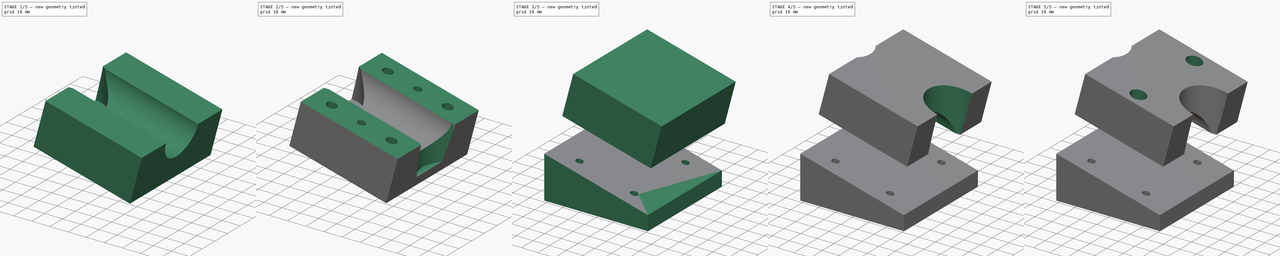
[diagram: build sequence overview — one tinted view per stage of 5, left to right]
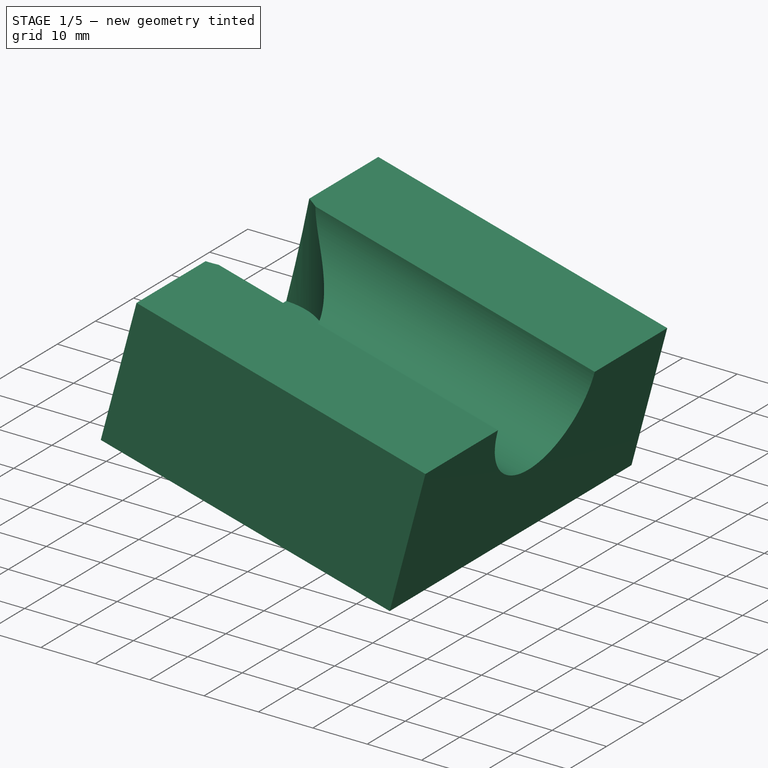
[diagram: stage 1 of 5 — iso view after this stage's code; geometry added in this stage tinted green]
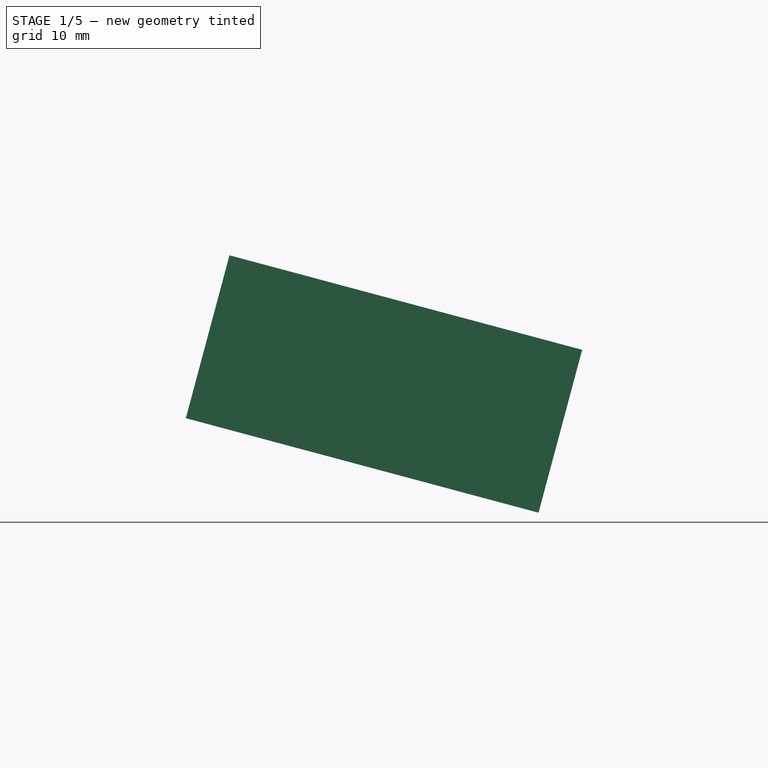
[diagram: stage 1 of 5 — front view after this stage's code; geometry added in this stage tinted green]
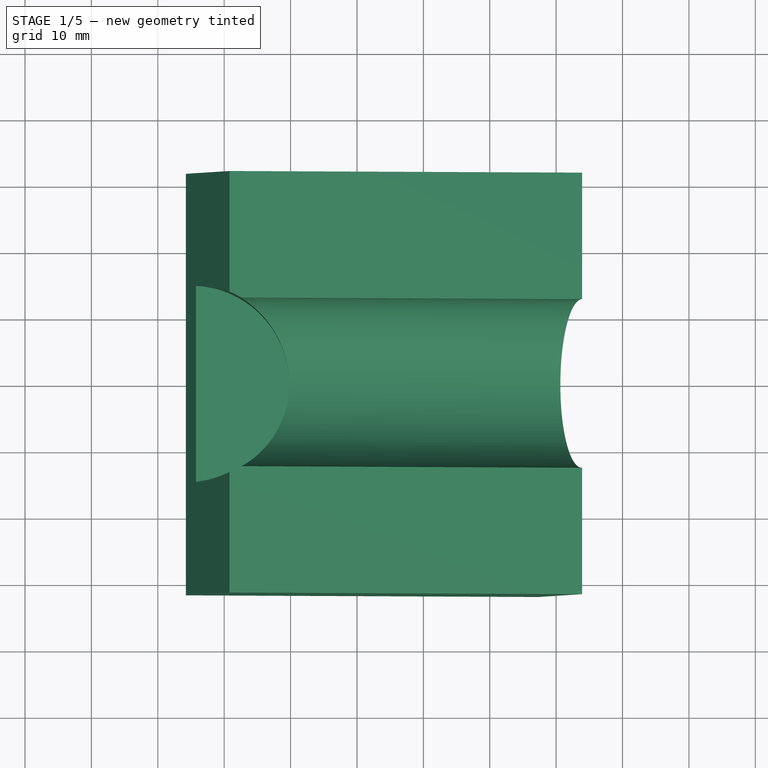
[diagram: stage 1 of 5 — top view after this stage's code; geometry added in this stage tinted green]
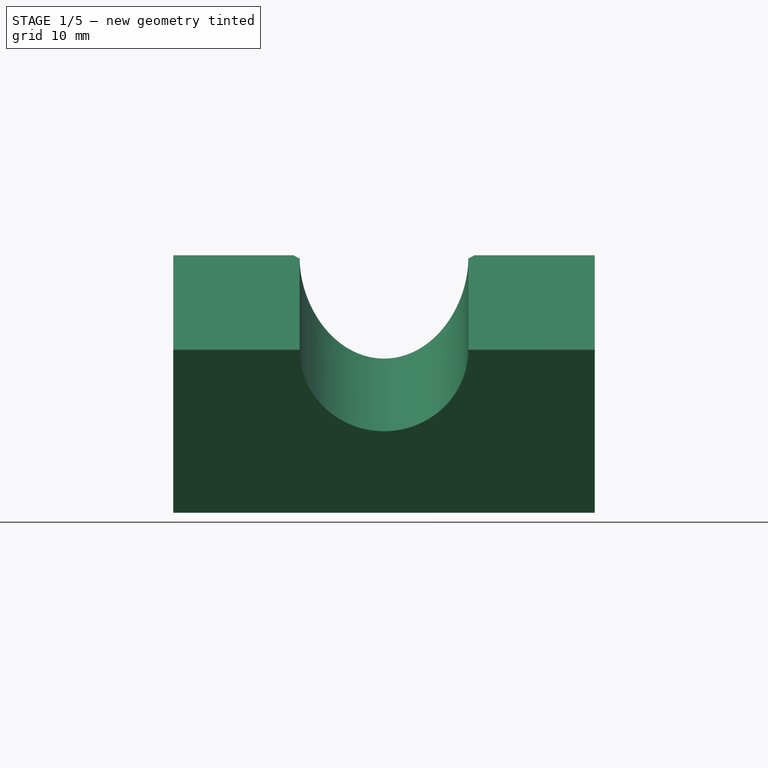
[diagram: stage 1 of 5 — right view after this stage's code; geometry added in this stage tinted green]
FCSTD DOCUMENT  (FreeCAD 0.17R13125 (Git))
Label: fork_crown_strut_mitering_jig
License: All rights reserved
LicenseURL: http://en.wikipedia.org/wiki/All_rights_reserved
objects: TechDraw::DrawViewDimension×26, Sketcher::SketchObject×20, PartDesign::Pocket×13, Part::Part2DObjectPython×11, App::FeaturePython×8, PartDesign::ShapeBinder×5, PartDesign::Mirrored×4, PartDesign::Pad×3, PartDesign::Body×3, App::Part×3, TechDraw::DrawSVGTemplate×3, TechDraw::DrawViewPart×3, TechDraw::DrawPage×3, App::DocumentObjectGroup×2, TechDraw::DrawViewMulti×2
note: 83 computed .brp shape members not serialized (recipe doc carries the construction recipe); baked Part::Feature solids carry a one-line shape summary decoded from their .brp

FEATURE [Sketcher::SketchObject] Sketch
  MapMode = 5
  Placement = pos=(0,0,0) rot=(1,0,0;1.5708rad)
  Support = -> [XZ_Plane]
  sketch-geometry (22):
    g0: LineSegment StartX=0 StartY=0 StartZ=0 EndX=0 EndY=25.4 EndZ=0
    g1: LineSegment StartX=0 StartY=25.4 StartZ=0 EndX=62.2037 EndY=8.73258 EndZ=0
    g2: LineSegment StartX=62.2037 StartY=8.73258 StartZ=0 EndX=62.2037 EndY=0 EndZ=0
    g3: LineSegment StartX=62.2037 StartY=0 StartZ=0 EndX=0 EndY=0 EndZ=0
    g4: LineSegment [constr] StartX=57.3475 StartY=10.0338 StartZ=0 EndX=70.4955 EndY=59.1028 EndZ=0
    g5: LineSegment [constr] StartX=4.22155 StartY=24.2688 StartZ=0 EndX=17.3696 EndY=73.3379 EndZ=0
    g6: LineSegment [constr] StartX=70.4955 StartY=59.1028 StartZ=0 EndX=17.3696 EndY=73.3379 EndZ=0
    g7: LineSegment [constr] StartX=10.7956 StartY=48.8034 StartZ=0 EndX=63.9215 EndY=34.5683 EndZ=0
    g8: LineSegment [constr] StartX=14.0826 StartY=61.0706 StartZ=0 EndX=67.2085 EndY=46.8356 EndZ=0
    g9: LineSegment [constr] StartX=7.50855 StartY=36.5361 StartZ=0 EndX=60.6345 EndY=22.301 EndZ=0
    g10: LineSegment [constr] StartX=-9.2875 StartY=65.1299 StartZ=0 EndX=19.2875 EndY=65.1299 EndZ=0
    g11: LineSegment [constr] StartX=19.2875 StartY=65.1299 StartZ=0 EndX=19.2875 EndY=33.3799 EndZ=0
    g12: LineSegment [constr] StartX=19.2875 StartY=33.3799 StartZ=0 EndX=-9.2875 EndY=33.3799 EndZ=0
    g13: LineSegment [constr] StartX=-9.2875 StartY=33.3799 StartZ=0 EndX=-9.2875 EndY=65.1299 EndZ=0
    g14: LineSegment [constr] StartX=5 StartY=65.1299 StartZ=0 EndX=5 EndY=33.3799 EndZ=0
    g15: LineSegment [constr] StartX=55.4295 StartY=22.301 StartZ=0 EndX=84.0045 EndY=22.301 EndZ=0
    g16: LineSegment [constr] StartX=84.0045 StartY=22.301 StartZ=0 EndX=84.0045 EndY=54.051 EndZ=0
    g17: LineSegment [constr] StartX=84.0045 StartY=54.051 StartZ=0 EndX=55.4295 EndY=54.051 EndZ=0
    g18: LineSegment [constr] StartX=55.4295 StartY=54.051 StartZ=0 EndX=55.4295 EndY=22.301 EndZ=0
    g19: LineSegment [constr] StartX=69.717 StartY=54.051 StartZ=0 EndX=69.717 EndY=22.301 EndZ=0
    g20: GeomPoint X=69.717 Y=33.0154 Z=0
    g21: GeomPoint X=5 Y=50.3563 Z=0
  constraints (75):
    c: Coincident(g-1,g0)
    c: PointOnObject(g0,g-2)
    c: Coincident(g1,g2)
    c: PointOnObject(g2,g-1)
    c: Coincident(g2,g3)
    c: Coincident(g3,g0)
    c: Vertical(g2)
    c: Angle(g1) = -0.261799
    c: Distance(g0) = 25.4
    c: Coincident(g6,g4)
    c: Coincident(g6,g5)
    c: Parallel(g6,g1)
    c: PointOnObject(g7,g5)
    c: PointOnObject(g7,g4)
    c: Symmetric(g5,g5,g7)
    c: PointOnObject(g8,g4)
    c: PointOnObject(g9,g5)
    c: PointOnObject(g8,g5)
    c: Parallel(g8,g7)
    c: Parallel(g9,g7)
    c: Symmetric(g9,g8,g7)
    c: Distance(g8,g9) = 25.4
    c: Distance(g5) = 50.8
    c: Coincident(g10,g11)
    c: Coincident(g11,g12)
    c: Coincident(g12,g13)
    c: Coincident(g13,g10)
    c: Horizontal(g10)
    c: Horizontal(g12)
    c: Vertical(g11)
    c: Vertical(g13)
    c: Distance(g10) = 28.575
    c: Distance(g13) = 31.75
    c: PointOnObject(g11,g9)
    c: PointOnObject(g14,g10)
    c: Vertical(g14)
    c: Symmetric(g10,g10,g14)
    c: Coincident(g15,g16)
    c: Coincident(g16,g17)
    c: Coincident(g17,g18)
    c: Coincident(g18,g15)
    c: Horizontal(g15)
    c: Horizontal(g17)
    c: Vertical(g16)
    c: Vertical(g18)
    c: Distance(g17) = 28.575
    c: Distance(g16) = 31.75
    c: PointOnObject(g9,g15)
    c: PointOnObject(g19,g17)
    c: PointOnObject(g19,g15)
    c: Vertical(g19)
    c: Symmetric(g17,g16,g19)
    c: PointOnObject(g20,g7)
    c: PointOnObject(g21,g14)
    c: PointOnObject(g21,g7)
    c: PointOnObject(g20,g19)
    c: Distance(g20,g21) = 67
    c: Distance(g20,g7) = 6
    c: Distance(g7,g21) = 6
    c: PointOnObject(g9,g4)
    c: Perpendicular(g4,g1)
    c: PointOnObject(g4,g1)
    c: Distance(g3) = 62.2037
    c: PointOnObject(g14,g12)
    c: Parallel(g7,g1)
    c: Coincident(g1,g0)
    c: PointOnObject(g5,g1)
    c: DistanceX(g0,g14) = 5  'cope_1_off_x'
    c: DistanceX(g-1,g19) = 69.717  'cope_2_off_x'
    c: Distance(g6) = 55  'block_length'
    c: Distance(g5,g0) = 4.37047  'block_offset_from_top'
    c: DistanceX(g5,g14) = 0.778449
    c: DistanceY(g5,g14) = 9.1111
    c: DistanceX(g5,g19) = 65.4955
    c: DistanceX(g10,g17) = 36.142
FEATURE [Sketcher::SketchObject] Sketch001
  MapMode = 5
  Support = -> [XY_Plane]
  sketch-geometry (12):
    g0: LineSegment StartX=0 StartY=0 StartZ=0 EndX=60 EndY=30 EndZ=0
    g1: Circle CenterX=60 CenterY=30 CenterZ=0 NormalX=0 NormalY=0 NormalZ=1 AngleXU=0 Radius=12.7
    g2: Circle CenterX=0 CenterY=0 CenterZ=0 NormalX=0 NormalY=0 NormalZ=1 AngleXU=0 Radius=14.2875
    g3: LineSegment StartX=48 StartY=17.3 StartZ=0 EndX=72 EndY=17.3 EndZ=0
    g4: LineSegment StartX=72 StartY=17.3 StartZ=0 EndX=72 EndY=42.7 EndZ=0
    g5: LineSegment StartX=72 StartY=42.7 StartZ=0 EndX=48 EndY=42.7 EndZ=0
    g6: LineSegment StartX=48 StartY=42.7 StartZ=0 EndX=48 EndY=17.3 EndZ=0
    g7: LineSegment StartX=60 StartY=30 StartZ=0 EndX=60 EndY=17.3 EndZ=0
    g8: LineSegment StartX=60 StartY=30 StartZ=0 EndX=72 EndY=30 EndZ=0
    g9: LineSegment StartX=48 StartY=40.7 StartZ=0 EndX=50 EndY=40.7 EndZ=0
    g10: LineSegment StartX=50 StartY=40.7 StartZ=0 EndX=50 EndY=15.3 EndZ=0
    g11: LineSegment StartX=50 StartY=15.3 StartZ=0 EndX=48 EndY=15.3 EndZ=0
  constraints (36):
    c: Coincident(g0,g-1)
    c: Coincident(g1,g0)
    c: Coincident(g2,g-1)
    c: Coincident(g3,g4)
    c: Coincident(g4,g5)
    c: Coincident(g5,g6)
    c: Coincident(g6,g3)
    c: Horizontal(g3)
    c: Horizontal(g5)
    c: Vertical(g4)
    c: Vertical(g6)
    c: Radius(g1) = 12.7
    c: Radius(g2) = 14.2875
    c: Distance(g6) = 25.4
    c: Distance(g3) = 24
    c: Coincident(g7,g0)
    c: PointOnObject(g7,g1)
    c: Vertical(g7)
    c: Symmetric(g5,g4,g7)
    c: Coincident(g8,g0)
    c: PointOnObject(g8,g4)
    c: Horizontal(g8)
    c: Symmetric(g4,g3,g8)
    c: PointOnObject(g9,g6)
    c: Horizontal(g9)
    c: Coincident(g10,g9)
    c: Vertical(g10)
    c: Coincident(g11,g10)
    c: PointOnObject(g11,g6)
    c: Horizontal(g11)
    c: Distance(g9,g5) = 2
    c: Distance(g11,g3) = 2
    c: Distance(g11) = 2
    c: DistanceX(g-2,g10) = 50
    c: DistanceY(g-1,g0) = 30
    c: Distance(g0) = 67.082
FEATURE [PartDesign::Pad] Pad
  Length = 63.5
  Length2 = 100
  Midplane = true
  Placement = pos=(0,0,0) rot=(1,0,0;1.5708rad)
  Profile = -> Sketch
  Type = 0
FEATURE [PartDesign::ShapeBinder] ShapeBinder
  Placement = pos=(0,0,0) rot=(1,0,0;1.5708rad)
  Support = -> [Pad]
FEATURE [Sketcher::SketchObject] Sketch002
  ExternalGeometry = -> [ShapeBinder]
  MapMode = 5
  Placement = pos=(6.35,-2e-12,23.6985) rot=(0.130526,0,0.991445;3.14159rad)
  Support = -> [ShapeBinder]
  expr: Constraints[9] = Sketch.Constraints.block_offset_from_top
  expr: Constraints[10] = Sketch.Constraints.block_length
  sketch-geometry (4):
    g0: LineSegment StartX=-52.7965 StartY=31.75 StartZ=0 EndX=2.20353 EndY=31.75 EndZ=0
    g1: LineSegment StartX=2.20353 StartY=31.75 StartZ=0 EndX=2.20353 EndY=-31.75 EndZ=0
    g2: LineSegment StartX=2.20353 StartY=-31.75 StartZ=0 EndX=-52.7965 EndY=-31.75 EndZ=0
    g3: LineSegment StartX=-52.7965 StartY=-31.75 StartZ=0 EndX=-52.7965 EndY=31.75 EndZ=0
  constraints (12):
    c: Coincident(g0,g1)
    c: Coincident(g1,g2)
    c: Coincident(g2,g3)
    c: Coincident(g3,g0)
    c: Horizontal(g0)
    c: Horizontal(g2)
    c: Vertical(g1)
    c: Vertical(g3)
    c: Symmetric(g0,g1,g-1)
    c: Distance(g0,g-3) = 4.37047
    c: Distance(g0) = 55
    c: Horizontal(g0,g-3)
FEATURE [PartDesign::Pad] Pad001
  Length = 25.4
  Length2 = 100
  Placement = pos=(0,0,0) rot=(1,0,0;1.5708rad)
  Profile = -> Sketch002
  Type = 0
FEATURE [Sketcher::SketchObject] Sketch006
  ExternalGeometry = -> [Pad001]
  MapMode = 5
  Placement = pos=(50.9975,1e-12,-13.6647) rot=(0.793353,0,0.608761;3.14159rad)
  Support = -> [Pad001]
  sketch-geometry (1):
    g0: Circle CenterX=49.9345 CenterY=0 CenterZ=0 NormalX=0 NormalY=0 NormalZ=1 AngleXU=0 Radius=12.7
  constraints (3):
    c: PointOnObject(g0,g-1)
    c: PointOnObject(g0,g-3)
    c: Radius(g0) = 12.7
FEATURE [PartDesign::Pocket] Pocket002
  BaseFeature = -> Pad001
  Length = 5
  Length2 = 100
  Placement = pos=(0,0,0) rot=(1,0,0;1.5708rad)
  Profile = -> Sketch006
  Type = 1
FEATURE [Sketcher::SketchObject] Sketch009
  AttachmentOffset = pos=(0,0,30) rot=(0,0,1;0rad)
  MapMode = 5
  Placement = pos=(0,0,30) rot=(0,0,1;0rad)
  Support = -> [XY_Plane003]
  expr: Constraints[2] = (1in + 1in / 8 + 1mm) / 2
  expr: Constraints[1] = Sketch.Constraints.cope_1_off_x
  sketch-geometry (1):
    g0: Circle CenterX=5 CenterY=0 CenterZ=0 NormalX=0 NormalY=0 NormalZ=1 AngleXU=0 Radius=14.7875
  constraints (3):
    c: PointOnObject(g0,g-1)
    c: Distance(g-1,g0) = 5
    c: Radius(g0) = 14.7875
FEATURE [PartDesign::Pocket] Pocket004  label="Pocket006"
  BaseFeature = -> Pocket002
  Length = 5
  Length2 = 100
  Placement = pos=(0,0,0) rot=(1,0,0;1.5708rad)
  Profile = -> Sketch009
  Reversed = true
  Type = 1
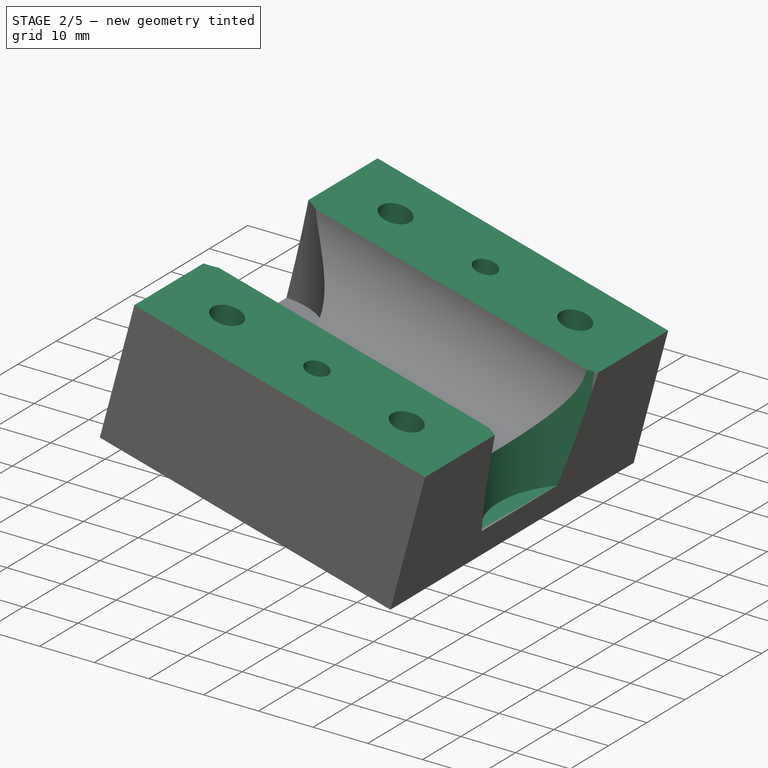
[diagram: stage 2 of 5 — iso view after this stage's code; geometry added in this stage tinted green]
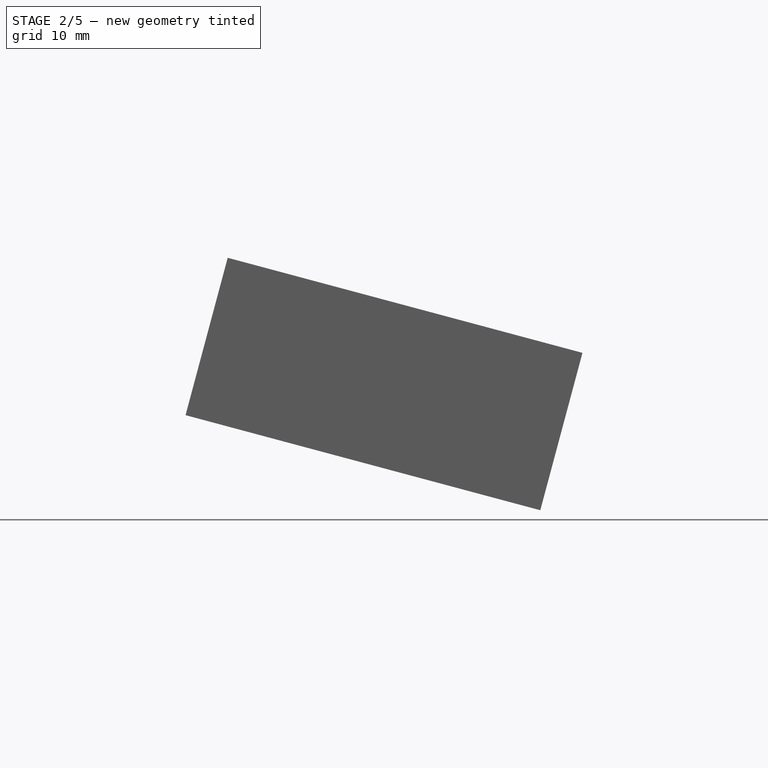
[diagram: stage 2 of 5 — front view after this stage's code; geometry added in this stage tinted green]
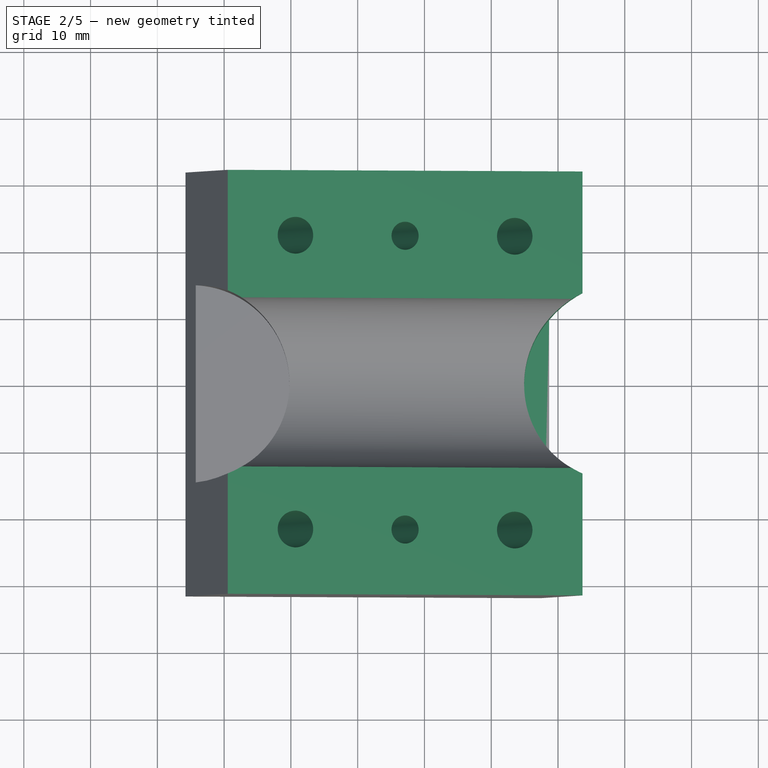
[diagram: stage 2 of 5 — top view after this stage's code; geometry added in this stage tinted green]
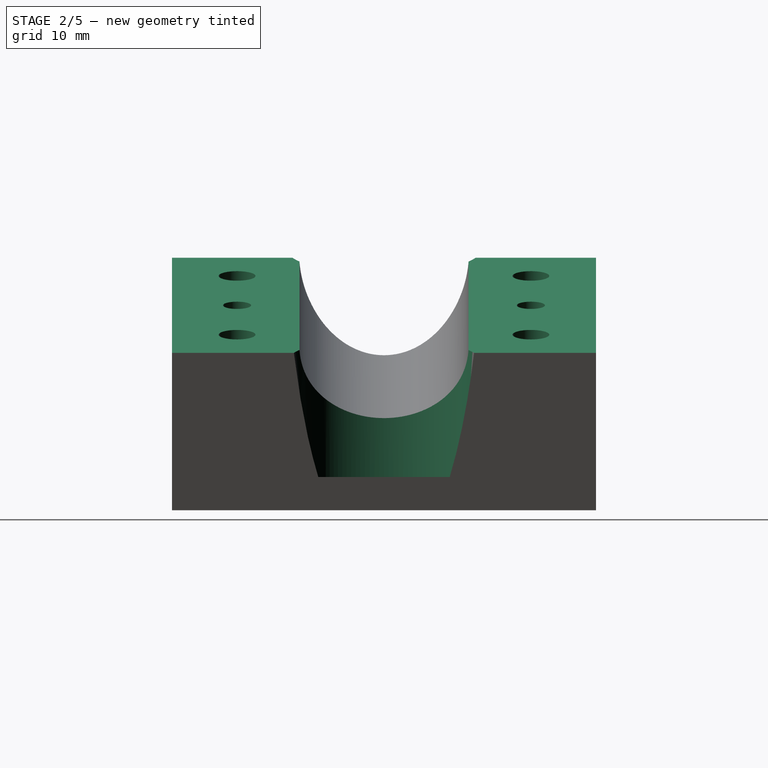
[diagram: stage 2 of 5 — right view after this stage's code; geometry added in this stage tinted green]
FEATURE [Sketcher::SketchObject] Sketch011
  AttachmentOffset = pos=(0,0,15) rot=(0,0,1;0rad)
  MapMode = 5
  Placement = pos=(0,0,15) rot=(0,0,1;0rad)
  Support = -> [XY_Plane003]
  expr: Constraints[1] = (1in + 1in / 8 + 1mm) / 2
  expr: Constraints[2] = Sketch.Constraints.cope_2_off_x
  sketch-geometry (1):
    g0: Circle CenterX=69.717 CenterY=0 CenterZ=0 NormalX=0 NormalY=0 NormalZ=1 AngleXU=0 Radius=14.7875
  constraints (3):
    c: PointOnObject(g0,g-1)
    c: Radius(g0) = 14.7875
    c: DistanceX(g-1,g0) = 69.717
FEATURE [PartDesign::Pocket] Pocket006  label="Pocket007"
  BaseFeature = -> Pocket004
  Length = 5
  Length2 = 100
  Placement = pos=(0,0,0) rot=(1,0,0;1.5708rad)
  Profile = -> Sketch011
  Reversed = true
  Type = 1
FEATURE [Sketcher::SketchObject] Sketch005
  ExternalGeometry = -> [Pad001]
  MapMode = 5
  Placement = pos=(0,-31.75,-3e-12) rot=(1,0,0;1.5708rad)
  Support = -> [Pocket006]
  sketch-geometry (4):
    g0: LineSegment StartX=63.6627 StartY=33.6024 StartZ=0 EndX=10.5367 EndY=47.8374 EndZ=0
    g1: LineSegment StartX=10.5367 StartY=47.8374 StartZ=0 EndX=10.7956 EndY=48.8034 EndZ=0
    g2: LineSegment StartX=10.7956 StartY=48.8034 StartZ=0 EndX=63.9215 EndY=34.5683 EndZ=0
    g3: LineSegment StartX=63.9215 StartY=34.5683 StartZ=0 EndX=63.6627 EndY=33.6024 EndZ=0
  constraints (10):
    c: PointOnObject(g0,g-4)
    c: PointOnObject(g0,g-3)
    c: Coincident(g1,g0)
    c: Coincident(g1,g-3)
    c: Coincident(g2,g1)
    c: Coincident(g2,g-4)
    c: Coincident(g3,g2)
    c: Coincident(g3,g0)
    c: Perpendicular(g-4,g0)
    c: Distance(g1) = 1
FEATURE [PartDesign::Pocket] Pocket007  label="Pocket008"
  BaseFeature = -> Pocket006
  Length = 5
  Length2 = 100
  Placement = pos=(0,0,0) rot=(1,0,0;1.5708rad)
  Profile = -> Sketch005
  Type = 1
FEATURE [Sketcher::SketchObject] Sketch014
  ExternalGeometry = -> [Pocket007]
  MapMode = 5
  Placement = pos=(12.6652,-5e-12,47.2671) rot=(0.130526,0,0.991445;3.14159rad)
  Support = -> [Pocket007]
  sketch-geometry (6):
    g0: Circle CenterX=-25.2965 CenterY=22 CenterZ=0 NormalX=0 NormalY=0 NormalZ=1 AngleXU=0 Radius=2.1
    g1: LineSegment [constr] StartX=-25.2965 StartY=31.75 StartZ=0 EndX=-25.2965 EndY=-31.75 EndZ=0
    g2: Circle CenterX=-8.29647 CenterY=22 CenterZ=0 NormalX=0 NormalY=0 NormalZ=1 AngleXU=0 Radius=2.75
    g3: Circle CenterX=-42.2965 CenterY=22 CenterZ=0 NormalX=0 NormalY=0 NormalZ=1 AngleXU=0 Radius=2.75
    g4: LineSegment [constr] StartX=-42.2965 StartY=22 StartZ=0 EndX=-8.29647 EndY=22 EndZ=0
    g5: Circle [constr] CenterX=-42.2965 CenterY=22 CenterZ=0 NormalX=0 NormalY=0 NormalZ=1 AngleXU=0 Radius=4.5
  constraints (17):
    c: PointOnObject(g1,g-3)
    c: PointOnObject(g1,g-4)
    c: Symmetric(g-3,g-3,g1)
    c: PointOnObject(g0,g1)
    c: Radius(g0) = 2.1
    c: Radius(g2) = 2.75
    c: Radius(g3) = 2.75
    c: Coincident(g4,g3)
    c: Coincident(g4,g2)
    c: Horizontal(g4)
    c: PointOnObject(g0,g4)
    c: Symmetric(g3,g2,g1)
    c: Distance(g4) = 34
    c: Coincident(g5,g3)
    c: Radius(g5) = 4.5
    c: DistanceY(g-1,g2) = 22
    c: DistanceY(g-1,g-3) = 31.75
FEATURE [PartDesign::Pocket] Pocket009  label="Pocket010"
  BaseFeature = -> Pocket007
  Length = 5
  Length2 = 100
  Placement = pos=(0,0,0) rot=(1,0,0;1.5708rad)
  Profile = -> Sketch014
  Type = 1
FEATURE [PartDesign::Mirrored] Mirrored
  BaseFeature = -> Pocket009
  MirrorPlane = -> Sketch014 [H_Axis]
  Originals = -> [Pocket009]
  Placement = pos=(0,0,0) rot=(1,0,0;1.5708rad)
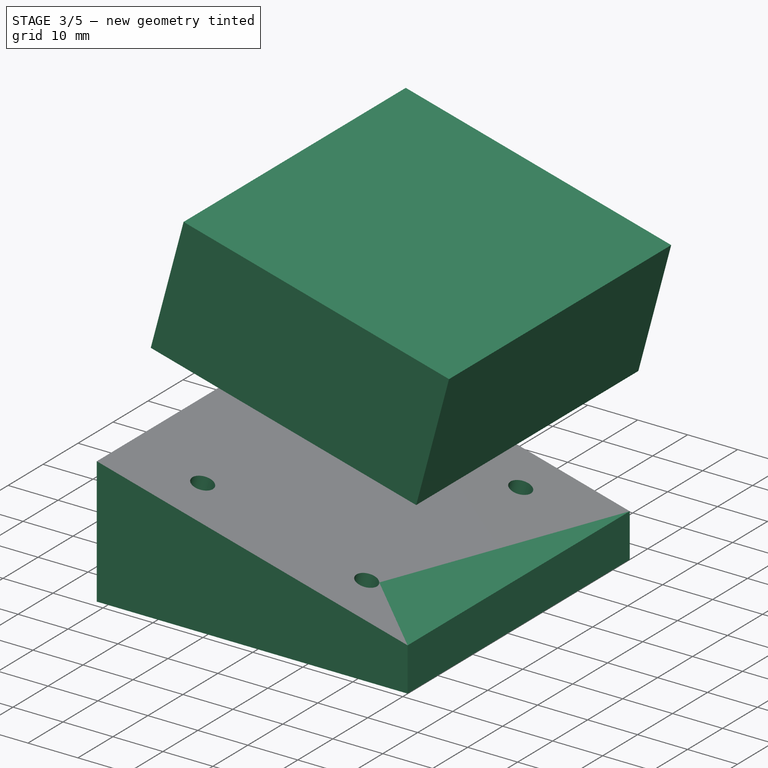
[diagram: stage 3 of 5 — iso view after this stage's code; geometry added in this stage tinted green]
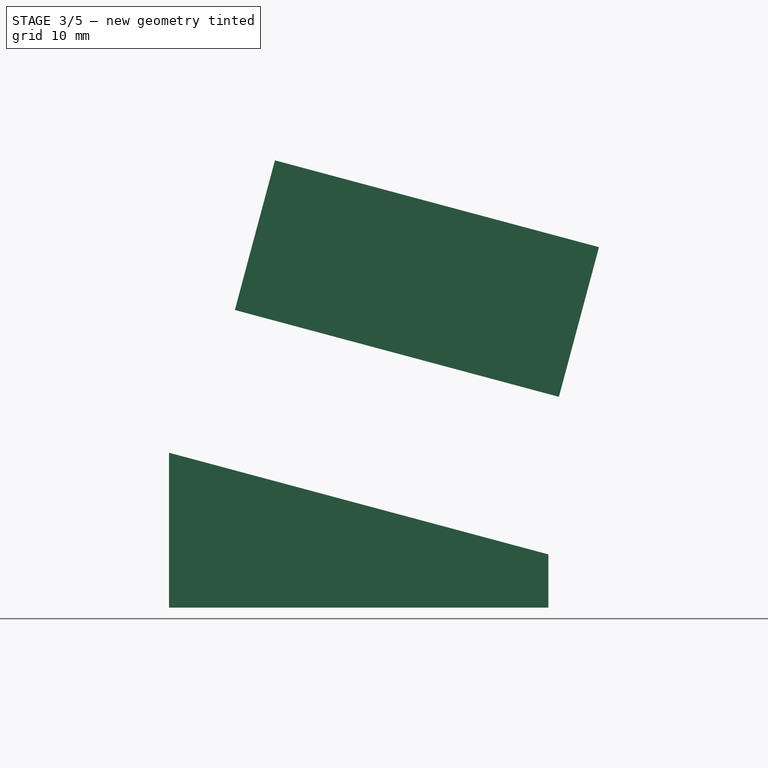
[diagram: stage 3 of 5 — front view after this stage's code; geometry added in this stage tinted green]
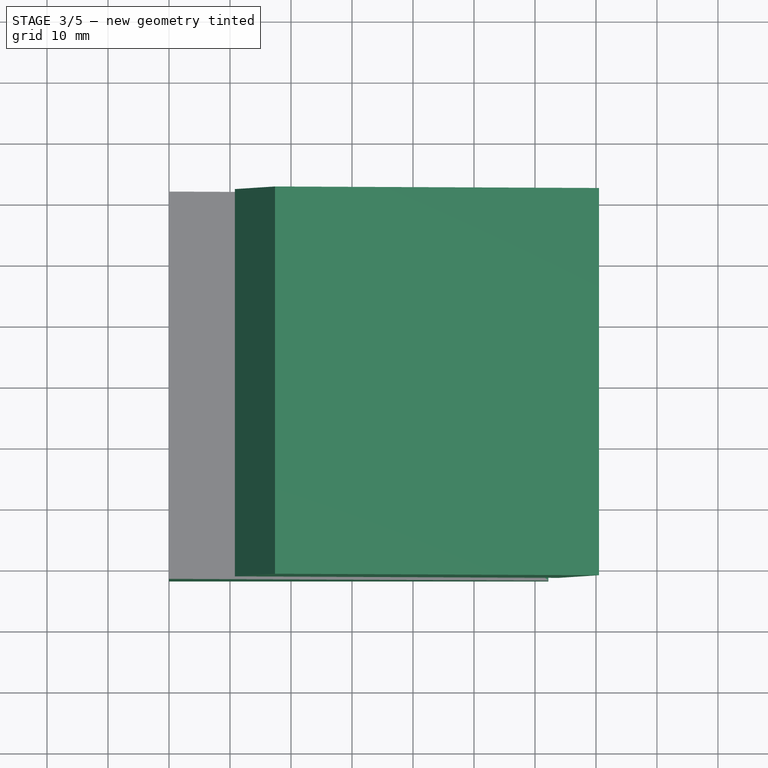
[diagram: stage 3 of 5 — top view after this stage's code; geometry added in this stage tinted green]
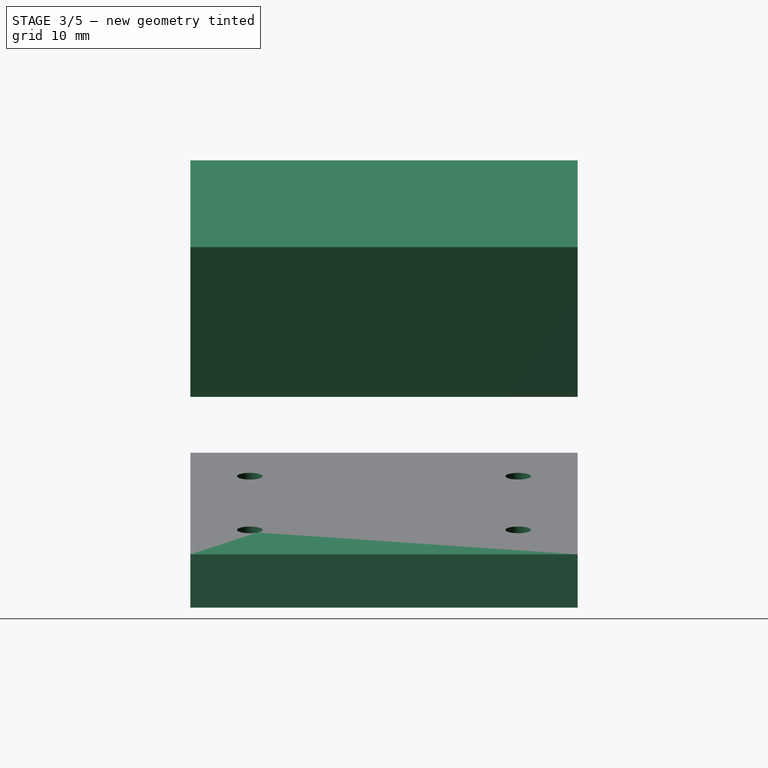
[diagram: stage 3 of 5 — right view after this stage's code; geometry added in this stage tinted green]
FEATURE [PartDesign::ShapeBinder] ShapeBinder001
  Placement = pos=(6.574,-3e-12,24.5345) rot=(0,0,1;0rad)
  Support = -> [Pad001]
FEATURE [Sketcher::SketchObject] Sketch003
  ExternalGeometry = -> [ShapeBinder001]
  MapMode = 5
  Placement = pos=(12.924,-5e-12,48.233) rot=(0,1,0;0.261799rad)
  Support = -> [ShapeBinder001]
  sketch-geometry (4):
    g0: LineSegment StartX=-2.20353 StartY=31.75 StartZ=0 EndX=52.7965 EndY=31.75 EndZ=0
    g1: LineSegment StartX=52.7965 StartY=31.75 StartZ=0 EndX=52.7965 EndY=-31.75 EndZ=0
    g2: LineSegment StartX=52.7965 StartY=-31.75 StartZ=0 EndX=-2.20353 EndY=-31.75 EndZ=0
    g3: LineSegment StartX=-2.20353 StartY=-31.75 StartZ=0 EndX=-2.20353 EndY=31.75 EndZ=0
  constraints (8):
    c: Coincident(g0,g-3)
    c: Coincident(g0,g-3)
    c: Coincident(g1,g0)
    c: Coincident(g1,g-4)
    c: Coincident(g2,g1)
    c: Coincident(g2,g-4)
    c: Coincident(g3,g2)
    c: Coincident(g3,g0)
FEATURE [PartDesign::Pad] Pad002
  Length = 25.4
  Length2 = 100
  Placement = pos=(6.574,-3e-12,24.5345) rot=(0,0,1;0rad)
  Profile = -> Sketch003
  Type = 0
FEATURE [Sketcher::SketchObject] Sketch015
  ExternalGeometry = -> [Mirrored]
  MapMode = 5
  Placement = pos=(12.6652,-5e-12,47.2671) rot=(0.130526,0,0.991445;3.14159rad)
  Support = -> [Mirrored]
  sketch-geometry (2):
    g0: Circle CenterX=-42.2965 CenterY=22 CenterZ=0 NormalX=0 NormalY=0 NormalZ=1 AngleXU=0 Radius=4.5
    g1: Circle CenterX=-8.29647 CenterY=22 CenterZ=0 NormalX=0 NormalY=0 NormalZ=1 AngleXU=0 Radius=4.5
  constraints (4):
    c: Coincident(g0,g-3)
    c: Radius(g0) = 4.5
    c: Coincident(g1,g-4)
    c: Radius(g1) = 4.5
FEATURE [PartDesign::Pocket] Pocket010  label="Pocket011"
  BaseFeature = -> Mirrored
  Length = 6
  Length2 = 100
  Placement = pos=(0,0,0) rot=(1,0,0;1.5708rad)
  Profile = -> Sketch015
  Type = 0
FEATURE [PartDesign::Mirrored] Mirrored001
  BaseFeature = -> Pocket010
  MirrorPlane = -> Sketch015 [H_Axis]
  Originals = -> [Pocket010]
  Placement = pos=(0,0,0) rot=(1,0,0;1.5708rad)
FEATURE [PartDesign::Body] Body001
  Group = -> [ShapeBinder,Sketch002,Pad001,Sketch006,Pocket002,Pocket004,Sketch009,Sketch011,Pocket006,Sketch005,Pocket007,Sketch014,Pocket009,Mirrored,Sketch015,Pocket010,Mirrored001]
  Origin = -> Origin003
  Tip = -> Pocket007
FEATURE [App::Part] Part001
  Group = -> [Body001]
  License = CC BY 3.0
  LicenseURL = http://creativecommons.org/licenses/by/3.0/
  Origin = -> Origin002
FEATURE [PartDesign::ShapeBinder] ShapeBinder004
  Support = -> [Mirrored001]
FEATURE [Sketcher::SketchObject] Sketch016
  ExternalGeometry = -> [ShapeBinder004]
  MapMode = 5
  Placement = pos=(6.35,-2e-12,23.6985) rot=(0.130526,0,0.991445;3.14159rad)
  Support = -> [Pad]
  sketch-geometry (4):
    g0: Circle CenterX=-42.2965 CenterY=22 CenterZ=0 NormalX=0 NormalY=0 NormalZ=1 AngleXU=0 Radius=2.1
    g1: Circle CenterX=-8.29647 CenterY=22 CenterZ=0 NormalX=0 NormalY=0 NormalZ=1 AngleXU=0 Radius=2.1
    g2: Circle CenterX=-42.2965 CenterY=-22 CenterZ=0 NormalX=0 NormalY=0 NormalZ=1 AngleXU=0 Radius=2.1
    g3: Circle CenterX=-8.29647 CenterY=-22 CenterZ=0 NormalX=0 NormalY=0 NormalZ=1 AngleXU=0 Radius=2.1
  constraints (8):
    c: Coincident(g1,g-4)
    c: Coincident(g2,g-6)
    c: Coincident(g3,g-5)
    c: Radius(g3) = 2.1
    c: Equal(g3,g2)
    c: Equal(g3,g1)
    c: Equal(g3,g0)
    c: Coincident(g0,g-3)
FEATURE [PartDesign::Pocket] Pocket011  label="Pocket012"
  BaseFeature = -> Pad
  Length = 5
  Length2 = 100
  Placement = pos=(0,0,0) rot=(1,0,0;1.5708rad)
  Profile = -> Sketch016
  Type = 1
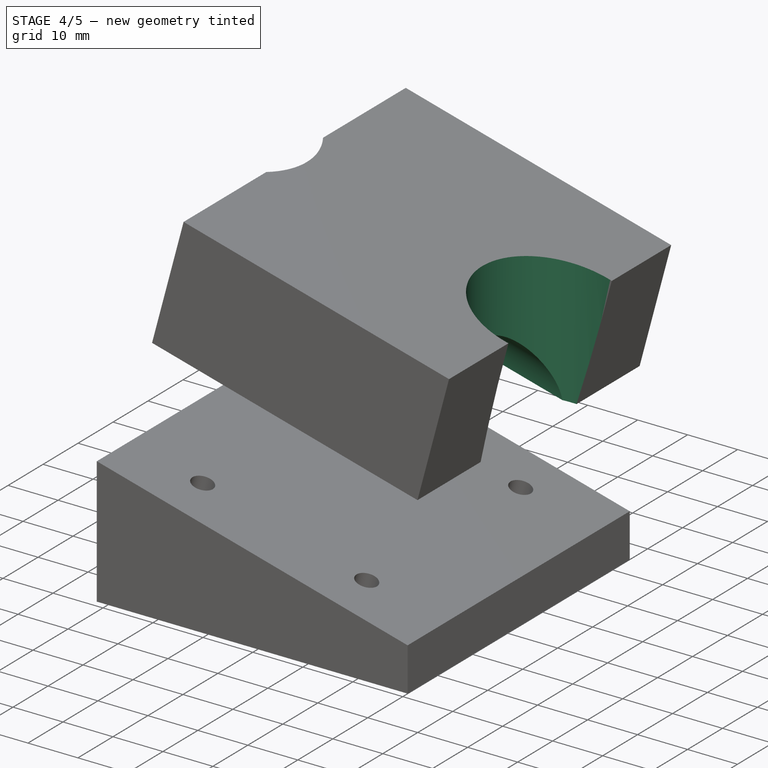
[diagram: stage 4 of 5 — iso view after this stage's code; geometry added in this stage tinted green]
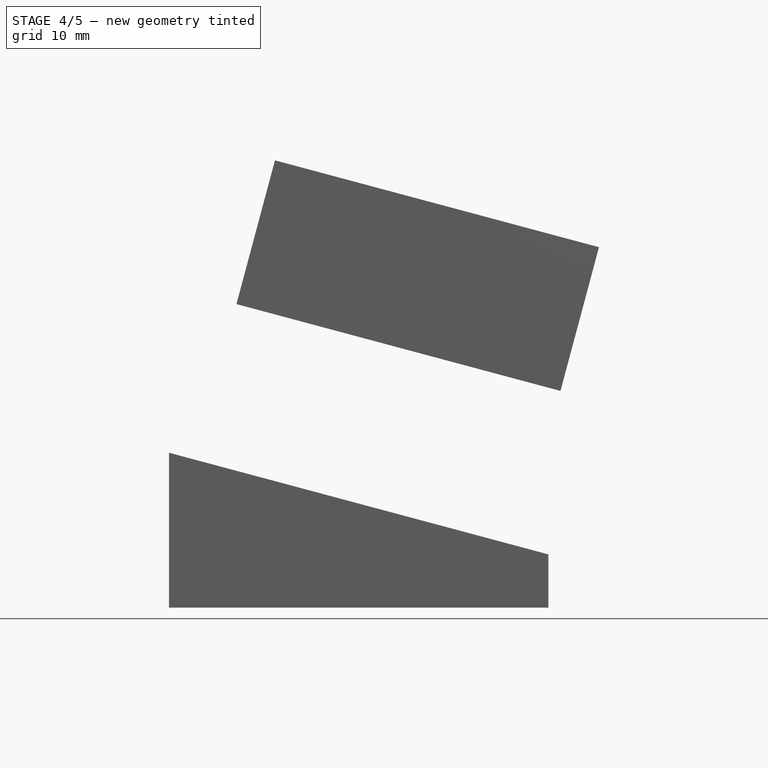
[diagram: stage 4 of 5 — front view after this stage's code; geometry added in this stage tinted green]
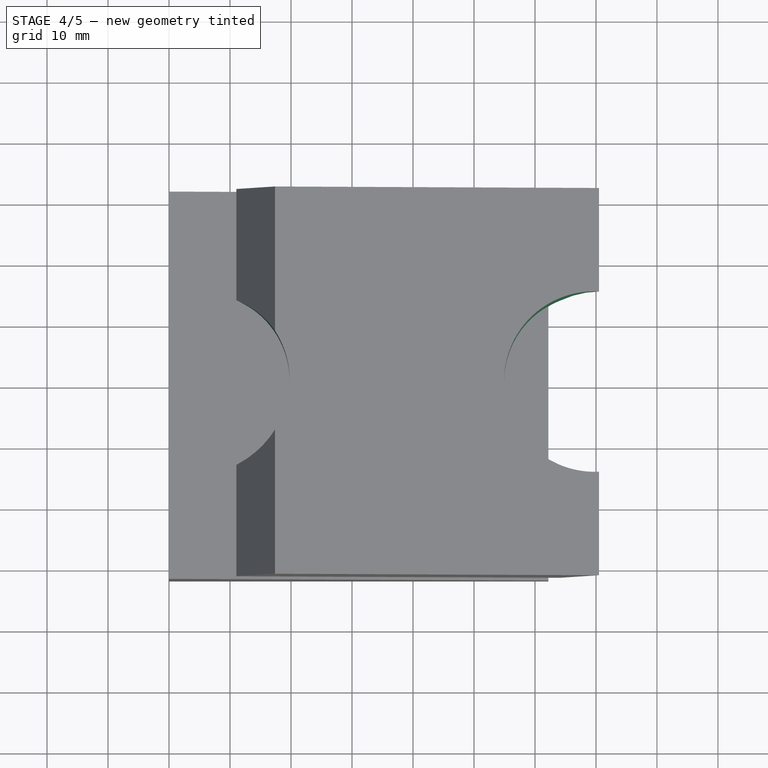
[diagram: stage 4 of 5 — top view after this stage's code; geometry added in this stage tinted green]
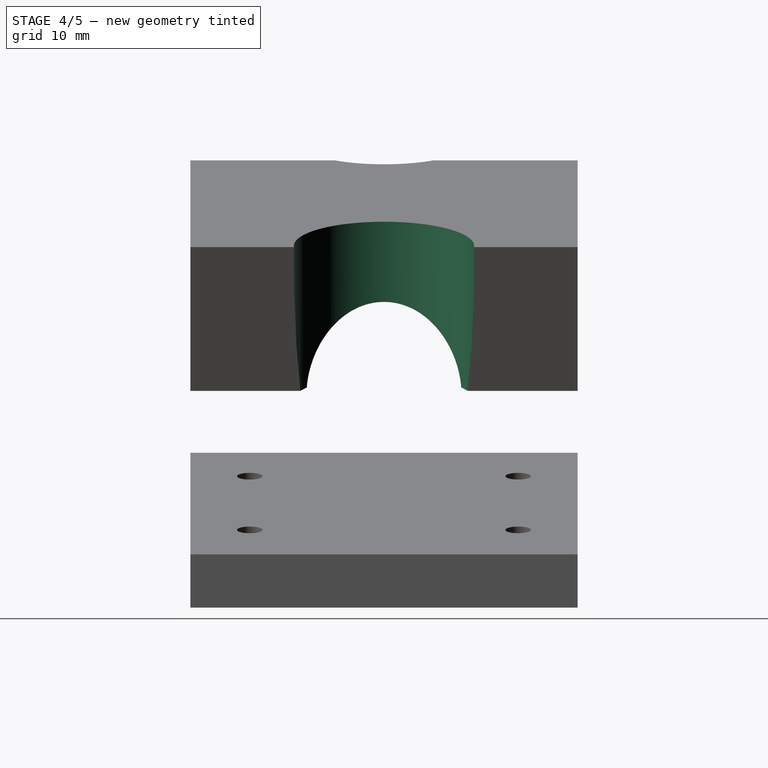
[diagram: stage 4 of 5 — right view after this stage's code; geometry added in this stage tinted green]
FEATURE [Sketcher::SketchObject] Sketch007
  ExternalGeometry = -> [Pad002]
  MapMode = 5
  Placement = pos=(57.5715,0,10.8698) rot=(0.621515,0.621515,0.476905;2.25159rad)
  Support = -> [Pad002]
  sketch-geometry (1):
    g0: Circle CenterX=0 CenterY=24.5345 CenterZ=0 NormalX=0 NormalY=0 NormalZ=1 AngleXU=0 Radius=12.7
  constraints (3):
    c: PointOnObject(g0,g-2)
    c: Radius(g0) = 12.7
    c: PointOnObject(g0,g-3)
FEATURE [PartDesign::Pocket] Pocket003
  BaseFeature = -> Pad002
  Length = 5
  Length2 = 100
  Placement = pos=(6.574,-3e-12,24.5345) rot=(0,0,1;0rad)
  Profile = -> Sketch007
  Type = 2
FEATURE [PartDesign::ShapeBinder] ShapeBinder002
  Placement = pos=(0,0,0) rot=(1,0,0;1.5708rad)
  Support = -> [Pocket004]
FEATURE [Sketcher::SketchObject] Sketch010
  ExternalGeometry = -> [ShapeBinder002]
  MapMode = 5
  Placement = pos=(0,0,30) rot=(0,0,1;3.14159rad)
  Support = -> [ShapeBinder002]
  sketch-geometry (1):
    g0: Circle CenterX=-5 CenterY=0 CenterZ=0 NormalX=0 NormalY=0 NormalZ=1 AngleXU=0 Radius=14.7875
  constraints (2):
    c: Coincident(g0,g-3)
    c: Equal(g0,g-3)
FEATURE [PartDesign::Pocket] Pocket005
  BaseFeature = -> Pocket003
  Length = 5
  Length2 = 100
  Placement = pos=(6.574,-3e-12,24.5345) rot=(0,0,1;0rad)
  Profile = -> Sketch010
  Reversed = true
  Type = 1
FEATURE [PartDesign::ShapeBinder] ShapeBinder003
  Placement = pos=(0,0,0) rot=(1,0,0;1.5708rad)
  Support = -> [Pocket007]
FEATURE [Sketcher::SketchObject] Sketch012
  ExternalGeometry = -> [ShapeBinder003]
  MapMode = 5
  Placement = pos=(0,0,15) rot=(0,0,1;3.14159rad)
  Support = -> [ShapeBinder003]
  sketch-geometry (1):
    g0: Circle CenterX=-69.717 CenterY=0 CenterZ=0 NormalX=0 NormalY=0 NormalZ=1 AngleXU=0 Radius=14.7875
  constraints (2):
    c: Coincident(g0,g-3)
    c: Equal(g0,g-3)
FEATURE [PartDesign::Pocket] Pocket008  label="Pocket009"
  BaseFeature = -> Pocket005
  Length = 5
  Length2 = 100
  Placement = pos=(6.574,-3e-12,24.5345) rot=(0,0,1;0rad)
  Profile = -> Sketch012
  Reversed = true
  Type = 1
FEATURE [Sketcher::SketchObject] Sketch013
  ExternalGeometry = -> [Pocket008]
  MapMode = 5
  Placement = pos=(6.574,-31.75,24.5345) rot=(1,0,0;1.5708rad)
  Support = -> [Pocket008]
  sketch-geometry (4):
    g0: LineSegment StartX=4.48037 StartY=25.2348 StartZ=0 EndX=57.6063 EndY=10.9997 EndZ=0
    g1: LineSegment StartX=57.3475 StartY=10.0338 StartZ=0 EndX=4.22155 EndY=24.2688 EndZ=0
    g2: LineSegment StartX=4.22155 StartY=24.2688 StartZ=0 EndX=4.48037 EndY=25.2348 EndZ=0
    g3: LineSegment StartX=57.6063 StartY=10.9997 StartZ=0 EndX=57.3475 EndY=10.0338 EndZ=0
  constraints (10):
    c: PointOnObject(g0,g-3)
    c: PointOnObject(g0,g-4)
    c: Coincident(g1,g-4)
    c: Coincident(g1,g-3)
    c: Coincident(g2,g1)
    c: Coincident(g2,g0)
    c: Coincident(g3,g0)
    c: Coincident(g3,g1)
    c: Parallel(g1,g0)
    c: Distance(g3) = 1
FEATURE [PartDesign::Pocket] Pocket
  BaseFeature = -> Pocket008
  Length = 5
  Length2 = 100
  Placement = pos=(6.574,-3e-12,24.5345) rot=(0,0,1;0rad)
  Profile = -> Sketch013
  Type = 1
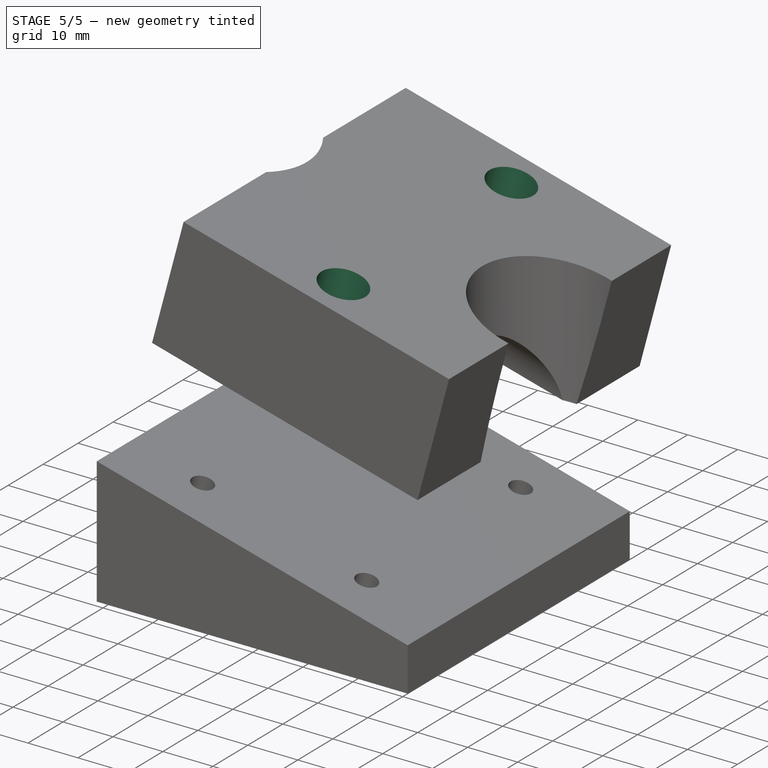
[diagram: stage 5 of 5 — iso view after this stage's code; geometry added in this stage tinted green]
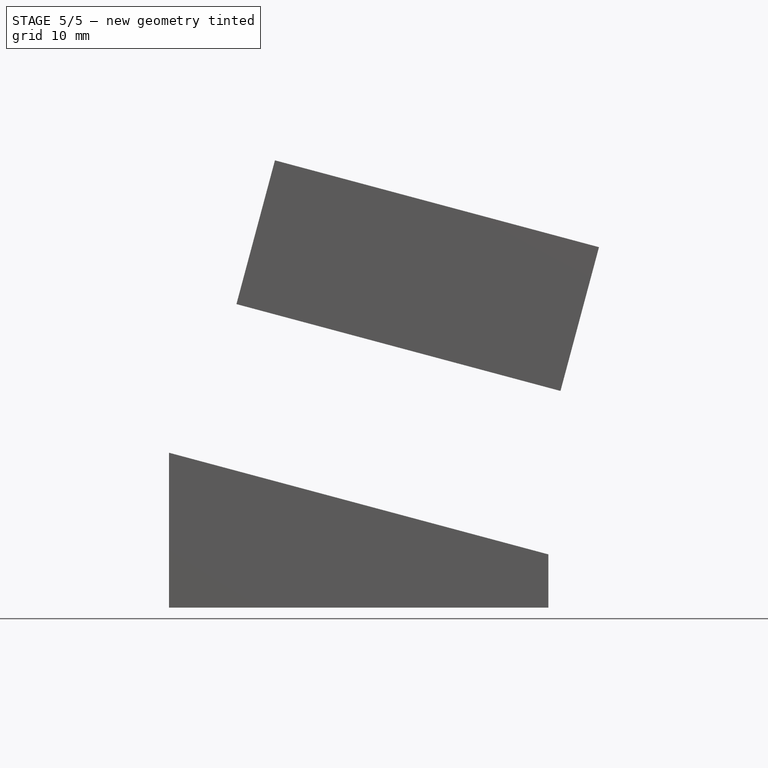
[diagram: stage 5 of 5 — front view after this stage's code; geometry added in this stage tinted green]
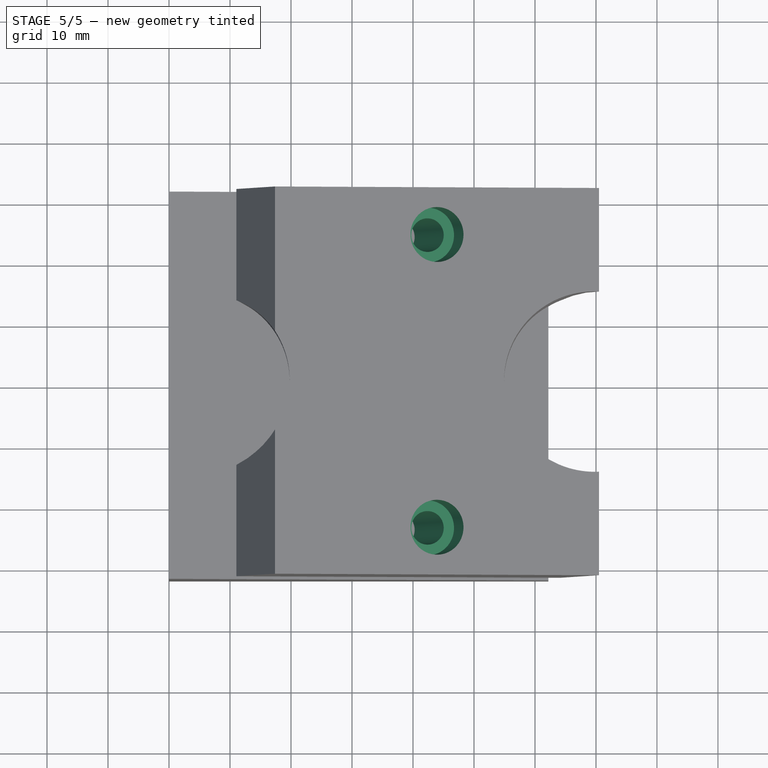
[diagram: stage 5 of 5 — top view after this stage's code; geometry added in this stage tinted green]
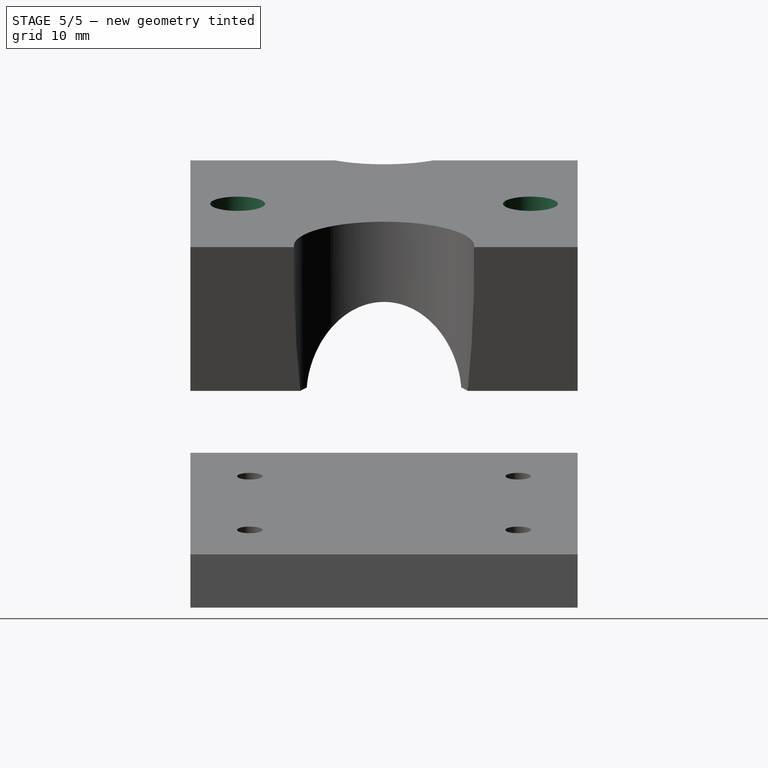
[diagram: stage 5 of 5 — right view after this stage's code; geometry added in this stage tinted green]
FEATURE [PartDesign::Body] Body
  Group = -> [Sketch,Sketch001,Pad,ShapeBinder004,Sketch016,Pocket011]
  Origin = -> Origin
  Tip = -> Pad
FEATURE [App::Part] Part
  Group = -> [Body]
  License = CC BY 3.0
  LicenseURL = http://creativecommons.org/licenses/by/3.0/
  Origin = -> Origin001
FEATURE [Sketcher::SketchObject] Sketch017
  ExternalGeometry = -> [Pocket]
  MapMode = 5
  Placement = pos=(19.498,-8e-12,72.7676) rot=(0,1,0;0.261799rad)
  Support = -> [Pocket]
  sketch-geometry (2):
    g0: Circle CenterX=25.2965 CenterY=24 CenterZ=0 NormalX=0 NormalY=0 NormalZ=1 AngleXU=0 Radius=4.5
    g1: LineSegment [constr] StartX=25.2965 StartY=31.75 StartZ=0 EndX=25.2965 EndY=24 EndZ=0
  constraints (6):
    c: Radius(g0) = 4.5
    c: PointOnObject(g1,g-3)
    c: Coincident(g1,g0)
    c: Vertical(g1)
    c: Symmetric(g-3,g-3,g1)
    c: DistanceY(g-1,g0) = 24
FEATURE [PartDesign::Pocket] Pocket012  label="Pocket013"
  BaseFeature = -> Pocket
  Length = 6
  Length2 = 100
  Placement = pos=(6.574,-3e-12,24.5345) rot=(0,0,1;0rad)
  Profile = -> Sketch017
  Type = 0
FEATURE [PartDesign::Mirrored] Mirrored002
  BaseFeature = -> Pocket012
  MirrorPlane = -> Sketch017 [H_Axis]
  Originals = -> [Pocket012]
  Placement = pos=(6.574,-3e-12,24.5345) rot=(0,0,1;0rad)
FEATURE [Sketcher::SketchObject] Sketch018
  ExternalGeometry = -> [Mirrored002]
  MapMode = 5
  Placement = pos=(17.9451,-7e-12,66.972) rot=(0,1,0;0.261799rad)
  Support = -> [Mirrored002]
  sketch-geometry (1):
    g0: Circle CenterX=25.2965 CenterY=-24 CenterZ=0 NormalX=0 NormalY=0 NormalZ=1 AngleXU=0 Radius=2.75
  constraints (2):
    c: Coincident(g0,g-3)
    c: Radius(g0) = 2.75
FEATURE [PartDesign::Pocket] Pocket013  label="Pocket014"
  BaseFeature = -> Mirrored002
  Length = 5
  Length2 = 100
  Placement = pos=(6.574,-3e-12,24.5345) rot=(0,0,1;0rad)
  Profile = -> Sketch018
  Type = 1
FEATURE [PartDesign::Mirrored] Mirrored003
  BaseFeature = -> Pocket013
  MirrorPlane = -> Sketch018 [H_Axis]
  Originals = -> [Pocket013]
  Placement = pos=(6.574,-3e-12,24.5345) rot=(0,0,1;0rad)
FEATURE [PartDesign::Body] Body002
  Group = -> [ShapeBinder001,Sketch003,Pad002,Pocket003,Sketch007,ShapeBinder002,Sketch010,Pocket005,ShapeBinder003,Sketch012,Pocket008,Sketch013,Pocket,Sketch017,Pocket012,Mirrored002,Sketch018,Pocket013,Mirrored003]
  Origin = -> Origin005
  Tip = -> Pad002
FEATURE [App::Part] Part002
  Group = -> [Body002]
  License = CC BY 3.0
  LicenseURL = http://creativecommons.org/licenses/by/3.0/
  Origin = -> Origin004
FEATURE [App::FeaturePython] Section  # WARN: FeaturePython — macro-defined, semantics opaque (R4)
  Objects = -> [Body002,Body001,Body]
  OnlySolids = true
  Placement = pos=(0,0,0) rot=(1,0,0;1.5708rad)
FEATURE [Part::Part2DObjectPython] Shape2DView  # Draft 2D object (typed FeaturePython)
  Base = -> Section
  HiddenLines = true
  InPlace = true
  Placement = pos=(133.79,-84.23,0) rot=(0,0,-1;1.5708rad)
  Projection = (-0.739918,-0.672571,0.0130174)
  ProjectionMode = 0
  SegmentLength = 0.05
  Tessellation = false
FEATURE [App::FeaturePython] Section001  # WARN: FeaturePython — macro-defined, semantics opaque (R4)
  Objects = -> [Body,Body001,Body002]
  OnlySolids = true
FEATURE [Part::Part2DObjectPython] Shape2DView001  # Draft 2D object (typed FeaturePython)
  Base = -> Section001
  HiddenLines = true
  InPlace = true
  Placement = pos=(29.88,-57.37,0) rot=(0,0,1;0rad)
  Projection = (0,0,1)
  ProjectionMode = 0
  SegmentLength = 0.05
  Tessellation = false
FEATURE [App::DocumentObjectGroup] Group  label="parts"
  Group = -> [Part,Part001,Part002]
FEATURE [App::FeaturePython] Section002  # WARN: FeaturePython — macro-defined, semantics opaque (R4)
  Objects = -> [Body002,Body001,Body]
  OnlySolids = true
  Placement = pos=(40.6765,-6.96501e-06,67.0928) rot=(1e-06,1,0;0.261799rad)
FEATURE [Part::Part2DObjectPython] Shape2DView002  # Draft 2D object (typed FeaturePython)
  Base = -> Section002
  HiddenLines = true
  InPlace = true
  Placement = pos=(38,-138,0) rot=(0,0,1;0rad)
  Projection = (0.0314906,-0.619771,0.784151)
  ProjectionMode = 0
  SegmentLength = 0.05
  Tessellation = false
FEATURE [App::DocumentObjectGroup] Group001  label="views"
  Group = -> [Shape2DView002,Section002,Shape2DView001,Section001,Shape2DView,Section]
FEATURE [TechDraw::DrawSVGTemplate] Template
  EditableTexts = AUTHOR_NAME=Troy Sankey; DN=DN; DRAWING_TITLE=Fork Strut Mitering Fixture; FC-DATE=DD/MM/YYYY; FC-REV=REV A; FC-SC=SCALE; FC-SH=X / Y; FC-SI=A4; FreeCAD_DRAWING=Overview; PN=PN
  Height = 210
  Orientation = 1
  Width = 297
FEATURE [TechDraw::DrawViewMulti] MultiView
  ArcCenterMarks = true
  CenterScale = 2
  CoarseView = false
  Direction = (-1,-1,1)
  ExtraWidth = 0
  Focus = 100
  HardHidden = false
  HiddenWidth = 0
  HorizCenterLine = false
  IsoCount = 0
  IsoHidden = false
  IsoVisible = false
  IsoWidth = 0
  KeepLabel = false
  LineWidth = 0.5
  LockPosition = false
  Perspective = false
  Rotation = 0
  ScaleType = 0
  SeamHidden = false
  SeamVisible = false
  ShowSectionLine = true
  SmoothHidden = false
  SmoothVisible = false
  Source = -> [Body]
  VertCenterLine = false
  X = 146.319
  Y = 119.021
FEATURE [TechDraw::DrawViewDimension] Dimension
  Font = osifont
  Fontsize = 3.5
  FormatSpec = %.1f
  KeepLabel = false
  LineWidth = 0.2
  LockPosition = false
  MeasureType = 0
  References2D = -> [MultiView]
  Rotation = 0
  ScaleType = 0
  Type = 0
  X = -13.3433
  Y = -53.5447
FEATURE [TechDraw::DrawViewDimension] Dimension001
  Font = osifont
  Fontsize = 3.5
  FormatSpec = %.1f
  KeepLabel = false
  LineWidth = 0.2
  LockPosition = false
  MeasureType = 0
  References2D = -> [MultiView]
  Rotation = 0
  ScaleType = 0
  Type = 0
  X = 30.4901
  Y = -47.7894
FEATURE [TechDraw::DrawViewDimension] Dimension002
  Font = osifont
  Fontsize = 3.5
  FormatSpec = %.1f
  KeepLabel = false
  LineWidth = 0.2
  LockPosition = false
  MeasureType = 0
  References2D = -> [MultiView]
  Rotation = 0
  ScaleType = 0
  Type = 0
  X = -55.8096
  Y = 17.1355
FEATURE [TechDraw::DrawViewDimension] Dimension003
  Font = osifont
  Fontsize = 3.5
  FormatSpec = %.1f
  KeepLabel = false
  LineWidth = 0.2
  LockPosition = false
  MeasureType = 0
  References2D = -> [MultiView]
  Rotation = 0
  ScaleType = 0
  Type = 0
  X = -28.7876
  Y = 45.2377
FEATURE [TechDraw::DrawViewDimension] Dimension004
  Font = osifont
  Fontsize = 3.5
  FormatSpec = %.1f
  KeepLabel = false
  LineWidth = 0.2
  LockPosition = false
  MeasureType = 0
  References2D = -> [MultiView]
  Rotation = 0
  ScaleType = 0
  Type = 0
  X = 21.0234
  Y = 44.0557
FEATURE [TechDraw::DrawViewDimension] Dimension005
  Font = osifont
  Fontsize = 3.5
  FormatSpec = %.1f
  KeepLabel = false
  LineWidth = 0.2
  LockPosition = false
  MeasureType = 0
  References2D = -> [MultiView]
  Rotation = 0
  ScaleType = 0
  Type = 0
  X = -45.9944
  Y = -31.1769
FEATURE [TechDraw::DrawViewDimension] Dimension006
  Font = osifont
  Fontsize = 3.5
  FormatSpec = %.1f
  KeepLabel = false
  LineWidth = 0.2
  LockPosition = false
  MeasureType = 0
  References2D = -> [MultiView]
  Rotation = 0
  ScaleType = 0
  Type = 0
  X = -51.1889
  Y = -6.39578
FEATURE [TechDraw::DrawViewDimension] Dimension007
  Font = osifont
  Fontsize = 3.5
  FormatSpec = %.1f
  KeepLabel = false
  LineWidth = 0.2
  LockPosition = false
  MeasureType = 0
  References2D = -> [MultiView]
  Rotation = 0
  ScaleType = 0
  Type = 0
  X = 48.7974
  Y = 5.92202
FEATURE [App::FeaturePython] Section003  # WARN: FeaturePython — macro-defined, semantics opaque (R4)
  Objects = -> [Mirrored003]
  OnlySolids = true
  Placement = pos=(40.6765,-6.96501e-06,67.0928) rot=(1e-06,1,0;0.261799rad)
FEATURE [Part::Part2DObjectPython] Shape2DView003  # Draft 2D object (typed FeaturePython)
  Base = -> Section003
  HiddenLines = false
  InPlace = true
  Projection = (-0.436538,-0.546467,0.714709)
  ProjectionMode = 0
  SegmentLength = 0.05
  Tessellation = false
FEATURE [Sketcher::SketchObject] Sketch019
  sketch-geometry (21):
    g0: LineSegment StartX=-2.20353 StartY=24 StartZ=0 EndX=52.7965 EndY=24 EndZ=0
    g1: ArcOfEllipse CenterX=58.5285 CenterY=6.76401e-06 CenterZ=0 NormalX=0 NormalY=0 NormalZ=1 MajorRadius=15.3091 MinorRadius=14.7875 AngleXU=-3.06875e-07 StartAngle=1.95457 EndAngle=2.11379
    g2: BSplineCurve PolesCount=15 KnotsCount=15 Degree=1 IsPeriodic=0
    g3: LineSegment StartX=52.7965 StartY=24 StartZ=0 EndX=52.7965 EndY=14.767 EndZ=0
    g4: ArcOfEllipse CenterX=-15.0094 CenterY=6.18352e-06 CenterZ=0 NormalX=0 NormalY=0 NormalZ=1 MajorRadius=15.3091 MinorRadius=14.7875 AngleXU=-1.91728e-07 StartAngle=5.70323 EndAngle=6.86314
    g5: LineSegment StartX=-2.20353 StartY=8.10335 StartZ=0 EndX=-2.20353 EndY=24 EndZ=0
    g6: LineSegment StartX=-2.20353 StartY=-24 StartZ=0 EndX=-2.20353 EndY=-8.10334 EndZ=0
    g7: LineSegment StartX=52.7965 StartY=-24 StartZ=0 EndX=-2.20353 EndY=-24 EndZ=0
    g8: LineSegment StartX=52.7965 StartY=-14.767 StartZ=0 EndX=52.7965 EndY=-24 EndZ=0
    g9: ArcOfEllipse CenterX=51.9906 CenterY=8.77035e-06 CenterZ=0 NormalX=0 NormalY=0 NormalZ=1 MajorRadius=15.3091 MinorRadius=14.7875 AngleXU=-3.06875e-07 StartAngle=1.5708 EndAngle=3.14159
    g10: ArcOfEllipse CenterX=51.9906 CenterY=8.77035e-06 CenterZ=0 NormalX=0 NormalY=0 NormalZ=1 MajorRadius=15.3091 MinorRadius=14.7875 AngleXU=-3.06875e-07 StartAngle=1.51813 EndAngle=1.5708
    g11: ArcOfEllipse CenterX=51.9906 CenterY=8.77035e-06 CenterZ=0 NormalX=0 NormalY=0 NormalZ=1 MajorRadius=15.3091 MinorRadius=14.7875 AngleXU=-3.06875e-07 StartAngle=4.71239 EndAngle=4.76506
    g12: ArcOfEllipse CenterX=51.9906 CenterY=8.77035e-06 CenterZ=0 NormalX=0 NormalY=0 NormalZ=1 MajorRadius=15.3091 MinorRadius=14.7875 AngleXU=-3.06875e-07 StartAngle=3.14159 EndAngle=4.71239
    g13: Circle CenterX=25.2965 CenterY=18.5 CenterZ=0 NormalX=0 NormalY=0 NormalZ=1 AngleXU=3.8567e-08 Radius=4.5
    g14: Circle CenterX=25.2965 CenterY=-18.5 CenterZ=0 NormalX=0 NormalY=0 NormalZ=-1 AngleXU=3.14159 Radius=4.5
    g15: BSplineCurve PolesCount=44 KnotsCount=7 Degree=8 IsPeriodic=0
    g16: BSplineCurve PolesCount=51 KnotsCount=8 Degree=8 IsPeriodic=0
    g17: Circle CenterX=25.2965 CenterY=18.5 CenterZ=0 NormalX=0 NormalY=0 NormalZ=-1 AngleXU=3.14159 Radius=2.75
    g18: BSplineCurve PolesCount=15 KnotsCount=15 Degree=1 IsPeriodic=0
    g19: ArcOfEllipse CenterX=58.5285 CenterY=6.76401e-06 CenterZ=0 NormalX=0 NormalY=0 NormalZ=1 MajorRadius=15.3091 MinorRadius=14.7875 AngleXU=-3.06875e-07 StartAngle=4.1694 EndAngle=4.32862
    g20: Circle CenterX=25.2965 CenterY=-18.5 CenterZ=0 NormalX=0 NormalY=0 NormalZ=1 AngleXU=3.8567e-08 Radius=2.75
FEATURE [TechDraw::DrawViewPart] View
  ArcCenterMarks = true
  CenterScale = 2
  CoarseView = false
  Direction = (0,0,1)
  ExtraWidth = 0
  Focus = 100
  HardHidden = false
  HiddenWidth = 0
  HorizCenterLine = false
  IsoCount = 0
  IsoHidden = false
  IsoVisible = false
  IsoWidth = 0
  KeepLabel = false
  LineWidth = 0.5
  LockPosition = false
  Perspective = false
  Rotation = 90
  ScaleType = 0
  SeamHidden = false
  SeamVisible = false
  ShowSectionLine = true
  SmoothHidden = false
  SmoothVisible = false
  Source = -> [Sketch019]
  VertCenterLine = false
  X = 56
  Y = 72.6245
FEATURE [TechDraw::DrawViewDimension] Dimension011
  Font = osifont
  Fontsize = 3.5
  FormatSpec = %.1f
  KeepLabel = false
  LineWidth = 0
  LockPosition = false
  MeasureType = 1
  References2D = -> [View]
  Rotation = 0
  ScaleType = 0
  Type = 5
  X = 47.4339
  Y = 12.0683
FEATURE [TechDraw::DrawViewDimension] Dimension012
  Font = osifont
  Fontsize = 3.5
  FormatSpec = %.1f
  KeepLabel = false
  LineWidth = 0
  LockPosition = false
  MeasureType = 1
  References2D = -> [View]
  Rotation = 0
  ScaleType = 0
  Type = 5
  X = 48.5833
  Y = -18.3336
FEATURE [TechDraw::DrawViewDimension] Dimension013
  Font = osifont
  Fontsize = 3.5
  FormatSpec = %.1f
  KeepLabel = false
  LineWidth = 0.2
  LockPosition = false
  MeasureType = 0
  References2D = -> [MultiView]
  Rotation = 0
  ScaleType = 0
  Type = 6
  X = 4.05832
  Y = 33.8707
FEATURE [TechDraw::DrawViewDimension] Dimension014
  Font = osifont
  Fontsize = 3.5
  FormatSpec = %.1f
  KeepLabel = false
  LineWidth = 0.2
  LockPosition = false
  MeasureType = 0
  References2D = -> [MultiView]
  Rotation = 0
  ScaleType = 0
  Type = 0
  X = -58.8456
  Y = -29.9414
FEATURE [TechDraw::DrawPage] Page001
  KeepUpdated = true
  ProjectionType = 0
  Template = -> Template
  Views = -> [MultiView,Dimension,Dimension001,Dimension002,Dimension003,Dimension004,Dimension005,Dimension006,Dimension007,Dimension014,Dimension013]
FEATURE [TechDraw::DrawSVGTemplate] Template001
  EditableTexts = AUTHOR_NAME=AUTHOR NAME; DN=DN; DRAWING_TITLE=DRAWING TITLE; FC-DATE=DD/MM/YYYY; FC-REV=REV A; FC-SC=SCALE; FC-SH=X / Y; FC-SI=A4; FreeCAD_DRAWING=FreeCAD DRAWING; PN=PN
  Height = 210
  Orientation = 1
  Width = 297
FEATURE [App::FeaturePython] Section004  # WARN: FeaturePython — macro-defined, semantics opaque (R4)
  Objects = -> [Mirrored003]
  OnlySolids = true
  Placement = pos=(14.4292,-17.5681,62.3644) rot=(0,-1,0;1.309rad)
FEATURE [Part::Part2DObjectPython] Shape2DView004  # Draft 2D object (typed FeaturePython)
  Base = -> Section004
  HiddenLines = false
  InPlace = true
  Projection = (-0.0834138,-0.705446,0.703838)
  ProjectionMode = 0
  SegmentLength = 0.05
  Tessellation = false
FEATURE [Sketcher::SketchObject] Sketch020
  sketch-geometry (12):
    g0: LineSegment StartX=-50.9345 StartY=-24 StartZ=0 EndX=-75.3345 EndY=-24 EndZ=0
    g1: LineSegment StartX=-50.9345 StartY=-13.4913 StartZ=0 EndX=-50.9345 EndY=-24 EndZ=0
    g2: LineSegment StartX=-75.3345 StartY=-8.10334 StartZ=0 EndX=-75.3345 EndY=-24 EndZ=0
    g3: LineSegment StartX=-75.3345 StartY=24 StartZ=0 EndX=-75.3345 EndY=8.10335 EndZ=0
    g4: ArcOfEllipse CenterX=-27.5422 CenterY=6.60751e-07 CenterZ=0 NormalX=0 NormalY=0 NormalZ=1 MajorRadius=57.1345 MinorRadius=14.7875 AngleXU=-9.1463e-08 StartAngle=3.72155 EndAngle=4.29057
    g5: ArcOfEllipse CenterX=-27.5422 CenterY=1.5101e-07 CenterZ=0 NormalX=0 NormalY=0 NormalZ=1 MajorRadius=57.1345 MinorRadius=14.7875 AngleXU=-8.2227e-08 StartAngle=1.99279 EndAngle=2.56164
    g6: LineSegment StartX=-50.9432 StartY=24 StartZ=0 EndX=-50.9432 EndY=13.4903 EndZ=0
    g7: LineSegment StartX=-50.9432 StartY=24 StartZ=0 EndX=-75.3345 EndY=24 EndZ=0
    g8: LineSegment StartX=-75.3345 StartY=8.10335 StartZ=0 EndX=-75.3345 EndY=-8.10334 EndZ=0
    g9: ArcOfCircle CenterX=-49.9432 CenterY=0 CenterZ=0 NormalX=0 NormalY=0 NormalZ=1 AngleXU=0 Radius=12.6993 StartAngle=1.64962 EndAngle=4.63425
    g10: LineSegment StartX=-50.9345 StartY=-13.4913 StartZ=0 EndX=-50.9345 EndY=-12.6606 EndZ=0
    g11: LineSegment StartX=-50.9432 StartY=12.6599 StartZ=0 EndX=-50.9432 EndY=13.4903 EndZ=0
  constraints (24):
    c: Coincident(g9,g10)
    c: Coincident(g3,g5)
    c: Coincident(g3,g8)
    c: Coincident(g3,g7)
    c: Coincident(g6,g7)
    c: Coincident(g2,g4)
    c: Coincident(g2,g8)
    c: Coincident(g0,g2)
    c: Coincident(g0,g1)
    c: Coincident(g1,g4)
    c: Coincident(g1,g10)
    c: Coincident(g5,g6)
    c: Coincident(g5,g11)
    c: Vertical(g6)
    c: Vertical(g1)
    c: Horizontal(g0)
    c: Vertical(g2)
    c: Vertical(g8)
    c: Vertical(g3)
    c: Horizontal(g7)
    c: Vertical(g11)
    c: Coincident(g9,g11)
    c: PointOnObject(g9,g-1)
    c: DistanceX(g6,g9) = 1
FEATURE [TechDraw::DrawViewPart] View001
  ArcCenterMarks = true
  CenterScale = 2
  CoarseView = false
  Direction = (0,0,1)
  ExtraWidth = 0
  Focus = 100
  HardHidden = false
  HiddenWidth = 0
  HorizCenterLine = false
  IsoCount = 0
  IsoHidden = false
  IsoVisible = false
  IsoWidth = 0
  KeepLabel = false
  LineWidth = 0.5
  LockPosition = false
  Perspective = false
  Rotation = 90
  ScaleType = 0
  SeamHidden = false
  SeamVisible = false
  ShowSectionLine = true
  SmoothHidden = false
  SmoothVisible = false
  Source = -> [Sketch020]
  VertCenterLine = false
  X = 56
  Y = 151.506
FEATURE [TechDraw::DrawViewDimension] Dimension015
  Font = Sans
  Fontsize = 3.5
  FormatSpec = %.2f
  KeepLabel = false
  LineWidth = 0
  LockPosition = false
  MeasureType = 1
  References2D = -> [View001]
  Rotation = 0
  ScaleType = 0
  Type = 5
  X = -14.5329
  Y = -25.4325
FEATURE [TechDraw::DrawViewDimension] Dimension016
  Font = Sans
  Fontsize = 3.5
  FormatSpec = %.2f
  KeepLabel = false
  LineWidth = 0
  LockPosition = false
  MeasureType = 1
  References2D = -> [View001]
  Rotation = 0
  ScaleType = 0
  Type = 2
  X = 31.2457
  Y = 33.0623
FEATURE [App::FeaturePython] Section005  # WARN: FeaturePython — macro-defined, semantics opaque (R4)
  Objects = -> [Mirrored003]
  OnlySolids = true
  Placement = pos=(0,0,80) rot=(0,0,1;0rad)
FEATURE [Part::Part2DObjectPython] Shape2DView005  # Draft 2D object (typed FeaturePython)
  Base = -> Section005
  HiddenLines = false
  InPlace = true
  Projection = (0.57735,-0.57735,0.57735)
  ProjectionMode = 0
  SegmentLength = 0.05
  Tessellation = false
FEATURE [Sketcher::SketchObject] Sketch021
  expr: Constraints[14] = (1in + 1in / 8 + 1mm) / 2
  sketch-geometry (32):
    g0: LineSegment StartX=17.3696 StartY=24 StartZ=0 EndX=70.4955 EndY=24 EndZ=0
    g1: LineSegment StartX=11.0544 StartY=24 StartZ=0 EndX=17.3696 EndY=24 EndZ=0
    g2: LineSegment StartX=11.0544 StartY=13.4913 StartZ=0 EndX=11.0544 EndY=24 EndZ=0
    g3: ArcOfEllipse CenterX=37.6173 CenterY=18.5 CenterZ=0 NormalX=0 NormalY=0 NormalZ=1 MajorRadius=2.75 MinorRadius=2.6563 AngleXU=-1.5708 StartAngle=1.5708 EndAngle=2.02999
    g4: ArcOfEllipse CenterX=37.6173 CenterY=18.5 CenterZ=0 NormalX=0 NormalY=0 NormalZ=1 MajorRadius=2.75 MinorRadius=2.6563 AngleXU=-1.5708 StartAngle=1.11161 EndAngle=1.5708
    g5: LineSegment StartX=70.4955 StartY=24 StartZ=0 EndX=70.4955 EndY=14.7792 EndZ=0
    g6: LineSegment StartX=17.3696 StartY=8.10334 StartZ=0 EndX=17.3696 EndY=24 EndZ=0
    g7: LineSegment StartX=17.3696 StartY=-24 StartZ=0 EndX=17.3696 EndY=-8.10335 EndZ=0
    g8: LineSegment StartX=70.4955 StartY=-24 StartZ=0 EndX=17.3696 EndY=-24 EndZ=0
    g9: LineSegment StartX=70.4955 StartY=-14.7792 StartZ=0 EndX=70.4955 EndY=-24 EndZ=0
    g10: ArcOfEllipse CenterX=43.9325 CenterY=18.5 CenterZ=0 NormalX=0 NormalY=0 NormalZ=1 MajorRadius=4.5 MinorRadius=4.34667 AngleXU=-1.5708 StartAngle=1.5708 EndAngle=3.14159
    g11: ArcOfEllipse CenterX=43.9325 CenterY=18.5 CenterZ=0 NormalX=0 NormalY=0 NormalZ=1 MajorRadius=4.5 MinorRadius=4.34667 AngleXU=-1.5708 StartAngle=3.14159 EndAngle=6.28319
    g12: ArcOfEllipse CenterX=43.9325 CenterY=18.5 CenterZ=0 NormalX=0 NormalY=0 NormalZ=1 MajorRadius=4.5 MinorRadius=4.34667 AngleXU=-1.5708 StartAngle=0 EndAngle=1.5708
    g13: ArcOfEllipse CenterX=43.9325 CenterY=-18.5 CenterZ=0 NormalX=0 NormalY=0 NormalZ=1 MajorRadius=4.5 MinorRadius=4.34667 AngleXU=1.5708 StartAngle=3.14159 EndAngle=4.71239
    g14: ArcOfEllipse CenterX=43.9325 CenterY=-18.5 CenterZ=0 NormalX=0 NormalY=0 NormalZ=1 MajorRadius=4.5 MinorRadius=4.34667 AngleXU=1.5708 StartAngle=0 EndAngle=3.14159
    g15: ArcOfEllipse CenterX=43.9325 CenterY=-18.5 CenterZ=0 NormalX=0 NormalY=0 NormalZ=1 MajorRadius=4.5 MinorRadius=4.34667 AngleXU=1.5708 StartAngle=4.71239 EndAngle=6.28319
    g16: ArcOfEllipse CenterX=42.3796 CenterY=18.5 CenterZ=0 NormalX=0 NormalY=0 NormalZ=1 MajorRadius=2.75 MinorRadius=2.6563 AngleXU=1.5708 StartAngle=3.14159 EndAngle=4.71239
    g17: ArcOfEllipse CenterX=42.3796 CenterY=18.5 CenterZ=0 NormalX=0 NormalY=0 NormalZ=1 MajorRadius=2.75 MinorRadius=2.6563 AngleXU=1.5708 StartAngle=0 EndAngle=3.14159
    g18: ArcOfEllipse CenterX=42.3796 CenterY=18.5 CenterZ=0 NormalX=0 NormalY=0 NormalZ=1 MajorRadius=2.75 MinorRadius=2.6563 AngleXU=1.5708 StartAngle=4.71239 EndAngle=6.28319
    g19: LineSegment StartX=11.0544 StartY=-24 StartZ=0 EndX=11.0544 EndY=-13.4913 EndZ=0
    g20: LineSegment StartX=11.0544 StartY=-24 StartZ=0 EndX=17.3696 EndY=-24 EndZ=0
    g21: ArcOfEllipse CenterX=42.3796 CenterY=18.5 CenterZ=0 NormalX=0 NormalY=0 NormalZ=1 MajorRadius=4.5 MinorRadius=4.34667 AngleXU=-1.5708 StartAngle=1.5708 EndAngle=2.962
    g22: ArcOfEllipse CenterX=42.3796 CenterY=18.5 CenterZ=0 NormalX=0 NormalY=0 NormalZ=1 MajorRadius=4.5 MinorRadius=4.34667 AngleXU=-1.5708 StartAngle=0.179597 EndAngle=1.5708
    g23: ArcOfEllipse CenterX=42.3796 CenterY=-18.5 CenterZ=0 NormalX=0 NormalY=0 NormalZ=1 MajorRadius=4.5 MinorRadius=4.34667 AngleXU=1.5708 StartAngle=3.32119 EndAngle=4.71239
    g24: ArcOfEllipse CenterX=42.3796 CenterY=-18.5 CenterZ=0 NormalX=0 NormalY=0 NormalZ=1 MajorRadius=4.5 MinorRadius=4.34667 AngleXU=1.5708 StartAngle=4.71239 EndAngle=6.10359
    g25: ArcOfEllipse CenterX=37.6173 CenterY=-18.5 CenterZ=0 NormalX=0 NormalY=0 NormalZ=1 MajorRadius=2.75 MinorRadius=2.6563 AngleXU=-1.5708 StartAngle=1.5708 EndAngle=2.02999
    g26: ArcOfEllipse CenterX=37.6173 CenterY=-18.5 CenterZ=0 NormalX=0 NormalY=0 NormalZ=1 MajorRadius=2.75 MinorRadius=2.6563 AngleXU=-1.5708 StartAngle=1.11161 EndAngle=1.5708
    g27: ArcOfEllipse CenterX=42.3796 CenterY=-18.5 CenterZ=0 NormalX=0 NormalY=0 NormalZ=1 MajorRadius=2.75 MinorRadius=2.6563 AngleXU=-1.5708 StartAngle=1.5708 EndAngle=3.14159
    g28: ArcOfEllipse CenterX=42.3796 CenterY=-18.5 CenterZ=0 NormalX=0 NormalY=0 NormalZ=1 MajorRadius=2.75 MinorRadius=2.6563 AngleXU=-1.5708 StartAngle=3.14159 EndAngle=6.28319
    g29: ArcOfEllipse CenterX=42.3796 CenterY=-18.5 CenterZ=0 NormalX=0 NormalY=0 NormalZ=1 MajorRadius=2.75 MinorRadius=2.6563 AngleXU=-1.5708 StartAngle=0 EndAngle=1.5708
    g30: ArcOfCircle CenterX=5 CenterY=0 CenterZ=0 NormalX=0 NormalY=0 NormalZ=1 AngleXU=0 Radius=14.7875 StartAngle=5.13421 EndAngle=7.43216
    g31: ArcOfCircle CenterX=70 CenterY=0 CenterZ=0 NormalX=0 NormalY=0 NormalZ=1 AngleXU=0 Radius=14.7875 StartAngle=1.53728 EndAngle=4.7459
  constraints (26):
    c: Coincident(g0,g5)
    c: Coincident(g8,g9)
    c: Horizontal(g8)
    c: Horizontal(g0)
    c: Vertical(g5)
    c: Vertical(g9)
    c: Vertical(g6)
    c: Vertical(g7)
    c: Horizontal(g1)
    c: Horizontal(g20)
    c: Vertical(g19)
    c: Vertical(g2)
    c: PointOnObject(g6,g30)
    c: PointOnObject(g7,g30)
    c: Radius(g30) = 14.7875
    c: PointOnObject(g30,g-1)
    c: Distance(g-1,g30) = 5
    c: Distance(g30,g31) = 65
    c: PointOnObject(g31,g-1)
    c: Coincident(g5,g31)
    c: Coincident(g9,g31)
    c: Equal(g30,g31)
    c: Coincident(g2,g30)
    c: Coincident(g1,g2)
    c: Coincident(g19,g30)
    c: Coincident(g19,g20)
FEATURE [TechDraw::DrawViewPart] View002
  ArcCenterMarks = true
  CenterScale = 2
  CoarseView = false
  Direction = (0,0,1)
  ExtraWidth = 0
  Focus = 100
  HardHidden = false
  HiddenWidth = 0
  HorizCenterLine = false
  IsoCount = 0
  IsoHidden = false
  IsoVisible = false
  IsoWidth = 0
  KeepLabel = false
  LineWidth = 0.5
  LockPosition = false
  Perspective = false
  Rotation = 270
  ScaleType = 0
  SeamHidden = false
  SeamVisible = false
  ShowSectionLine = true
  SmoothHidden = false
  SmoothVisible = false
  Source = -> [Sketch021]
  VertCenterLine = false
  X = 205.905
  Y = 115.173
FEATURE [TechDraw::DrawViewDimension] Dimension017
  Font = Sans
  Fontsize = 3.5
  FormatSpec = %.2f
  KeepLabel = false
  LineWidth = 0
  LockPosition = false
  MeasureType = 1
  References2D = -> [View002]
  Rotation = 0
  ScaleType = 0
  Type = 5
  X = 50.1384
  Y = 5.44983
FEATURE [TechDraw::DrawViewDimension] Dimension018
  Font = Sans
  Fontsize = 3.5
  FormatSpec = %.2f
  KeepLabel = false
  LineWidth = 0
  LockPosition = false
  MeasureType = 1
  References2D = -> [View002]
  Rotation = 0
  ScaleType = 0
  Type = 5
  X = 49.7751
  Y = -5.0865
FEATURE [TechDraw::DrawViewDimension] Dimension019
  Font = Sans
  Fontsize = 3.5
  FormatSpec = %.2f
  KeepLabel = false
  LineWidth = 0
  LockPosition = false
  MeasureType = 1
  References2D = -> [View002]
  Rotation = 0
  ScaleType = 0
  Type = 2
  X = -44.3253
  Y = 3.99654
FEATURE [TechDraw::DrawViewDimension] Dimension020
  Font = Sans
  Fontsize = 3.5
  FormatSpec = %.2f
  KeepLabel = false
  LineWidth = 0
  LockPosition = false
  MeasureType = 1
  References2D = -> [View]
  Rotation = 0
  ScaleType = 0
  Type = 2
  X = -37.4221
  Y = -13.8062
FEATURE [TechDraw::DrawViewDimension] Dimension021
  Font = Sans
  Fontsize = 3.5
  FormatSpec = %.2f
  KeepLabel = false
  LineWidth = 0
  LockPosition = false
  MeasureType = 1
  References2D = -> [View]
  Rotation = 0
  ScaleType = 0
  Type = 1
  X = -1.45329
  Y = -36.3322
FEATURE [TechDraw::DrawViewDimension] Dimension022
  Font = Sans
  Fontsize = 3.5
  FormatSpec = %.2f
  KeepLabel = false
  LineWidth = 0
  LockPosition = false
  MeasureType = 1
  References2D = -> [View002]
  Rotation = 0
  ScaleType = 0
  Type = 2
  X = -34.1522
  Y = 53.4083
FEATURE [App::FeaturePython] Section006  # WARN: FeaturePython — macro-defined, semantics opaque (R4)
  Objects = -> [Pocket011]
  OnlySolids = true
  Placement = pos=(31.1073,0,17.0648) rot=(0,1,0;0.261799rad)
FEATURE [Part::Part2DObjectPython] Shape2DView006  # Draft 2D object (typed FeaturePython)
  Base = -> Section006
  HiddenLines = false
  InPlace = true
  Placement = pos=(-5.23847,49.8438,0) rot=(0,0,-1;0.261799rad)
  Projection = (0.377739,-0.866046,0.327533)
  ProjectionMode = 0
  SegmentLength = 0.05
  Tessellation = false
FEATURE [App::FeaturePython] Section007  # WARN: FeaturePython — macro-defined, semantics opaque (R4)
  Objects = -> [Pocket011]
  OnlySolids = true
  Placement = pos=(0,-30,0) rot=(1,0,0;1.5708rad)
FEATURE [Part::Part2DObjectPython] Shape2DView007  # Draft 2D object (typed FeaturePython)
  Base = -> Section007
  HiddenLines = false
  InPlace = true
  Placement = pos=(-25.4,-25.4,0) rot=(0,0,-1;1.5708rad)
  Projection = (0,-1,0)
  ProjectionMode = 0
  SegmentLength = 0.05
  Tessellation = false
FEATURE [TechDraw::DrawSVGTemplate] Template002
  EditableTexts = AUTHOR_NAME=TROY SANKEY; DN=DN; DRAWING_TITLE=BASE; Designed_by_Name=Troy Sankey; FC-REV=1; FC-SC=1 : 1; FC-SH=2 / 4; FC-SI=A4; FreeCAD_DRAWING=FreeCAD DRAWING; PN=PN
  Height = 210
  Orientation = 1
  Width = 297
FEATURE [TechDraw::DrawViewMulti] MultiView001
  ArcCenterMarks = true
  CenterScale = 2
  CoarseView = false
  Direction = (0,0,1)
  ExtraWidth = 0
  Focus = 100
  HardHidden = false
  HiddenWidth = 0
  HorizCenterLine = false
  IsoCount = 0
  IsoHidden = false
  IsoVisible = false
  IsoWidth = 0
  KeepLabel = false
  LineWidth = 0.5
  LockPosition = false
  Perspective = false
  Rotation = 0
  ScaleType = 0
  SeamHidden = false
  SeamVisible = false
  ShowSectionLine = true
  SmoothHidden = false
  SmoothVisible = false
  Source = -> [Shape2DView006]
  VertCenterLine = false
  X = 142.9
  Y = 127.79
FEATURE [TechDraw::DrawViewDimension] Dimension023
  Font = osifont
  Fontsize = 3.5
  FormatSpec = %.2f
  KeepLabel = false
  LineWidth = 0
  LockPosition = false
  MeasureType = 1
  References2D = -> [MultiView001]
  Rotation = 0
  ScaleType = 0
  Type = 0
  X = -45.595
  Y = -30.0469
FEATURE [TechDraw::DrawViewDimension] Dimension024
  Font = osifont
  Fontsize = 3.5
  FormatSpec = %.2f
  KeepLabel = false
  LineWidth = 0
  LockPosition = false
  MeasureType = 1
  References2D = -> [MultiView001]
  Rotation = 0
  ScaleType = 0
  Type = 0
  X = -12.0735
  Y = -57.1238
FEATURE [TechDraw::DrawViewDimension] Dimension025
  Font = osifont
  Fontsize = 3.5
  FormatSpec = %.2f
  KeepLabel = false
  LineWidth = 0
  LockPosition = false
  MeasureType = 1
  References2D = -> [MultiView001]
  Rotation = 0
  ScaleType = 0
  Type = 0
  X = 7.74866
  Y = -60.1872
FEATURE [TechDraw::DrawViewDimension] Dimension026
  Font = osifont
  Fontsize = 3.5
  FormatSpec = %.2f
  KeepLabel = false
  LineWidth = 0
  LockPosition = false
  MeasureType = 1
  References2D = -> [MultiView001]
  Rotation = 0
  ScaleType = 0
  Type = 0
  X = -35.1393
  Y = -35.3195
FEATURE [Part::Part2DObjectPython] Line  # Draft 2D object (typed FeaturePython)
  ChamferSize = 0
  Closed = false
  End = (-18.1453,27.0748,0)
  FilletRadius = 0
  Length = 28.0299
  MakeFace = false
  Points = (2) [(-25.4,3.8147e-06,0),(-18.1453,27.0748,0)]
  Start = (-25.4,3.8147e-06,0)
  Subdivisions = 0
FEATURE [Part::Part2DObjectPython] Line001  # Draft 2D object (typed FeaturePython)
  ChamferSize = 0
  Closed = false
  End = (36.8037,-16.6674,0)
  FilletRadius = 0
  Length = 27.9636
  MakeFace = false
  Points = (2) [(44.0412,10.3434,0),(36.8037,-16.6674,0)]
  Start = (44.0412,10.3434,0)
  Subdivisions = 0
FEATURE [Part::Part2DObjectPython] Line002  # Draft 2D object (typed FeaturePython)
  ChamferSize = 0
  Closed = false
  End = (36.8037,-25.4,0)
  FilletRadius = 0
  Length = 36.3987
  MakeFace = false
  Points = (2) [(46.2243,9.75842,0),(36.8037,-25.4,0)]
  Start = (46.2243,9.75842,0)
  Subdivisions = 0
FEATURE [TechDraw::DrawViewDimension] Dimension027
  Font = osifont
  Fontsize = 3.5
  FormatSpec = %.2f
  KeepLabel = false
  LineWidth = 0
  LockPosition = false
  MeasureType = 1
  References2D = -> [MultiView001]
  Rotation = 0
  ScaleType = 0
  Type = 1
  X = -12.9745
  Y = 62.1695
FEATURE [TechDraw::DrawPage] Page002
  KeepUpdated = true
  ProjectionType = 0
  Template = -> Template002
  Views = -> [MultiView001,Dimension023,Dimension024,Dimension025,Dimension026,Dimension027]
FEATURE [TechDraw::DrawViewDimension] Dimension028
  Font = osifont
  Fontsize = 3.5
  FormatSpec = %.2f
  KeepLabel = false
  LineWidth = 0.5
  LockPosition = false
  MeasureType = 1
  References2D = -> [View]
  Rotation = 0
  ScaleType = 0
  Type = 1
  X = 0.726644
  Y = 41.4187
FEATURE [TechDraw::DrawPage] Page
  KeepUpdated = true
  ProjectionType = 0
  Template = -> Template001
  Views = -> [Dimension011,View,Dimension012,View001,Dimension015,Dimension016,View002,Dimension017,Dimension018,Dimension019,Dimension020,Dimension021,Dimension022,Dimension028]
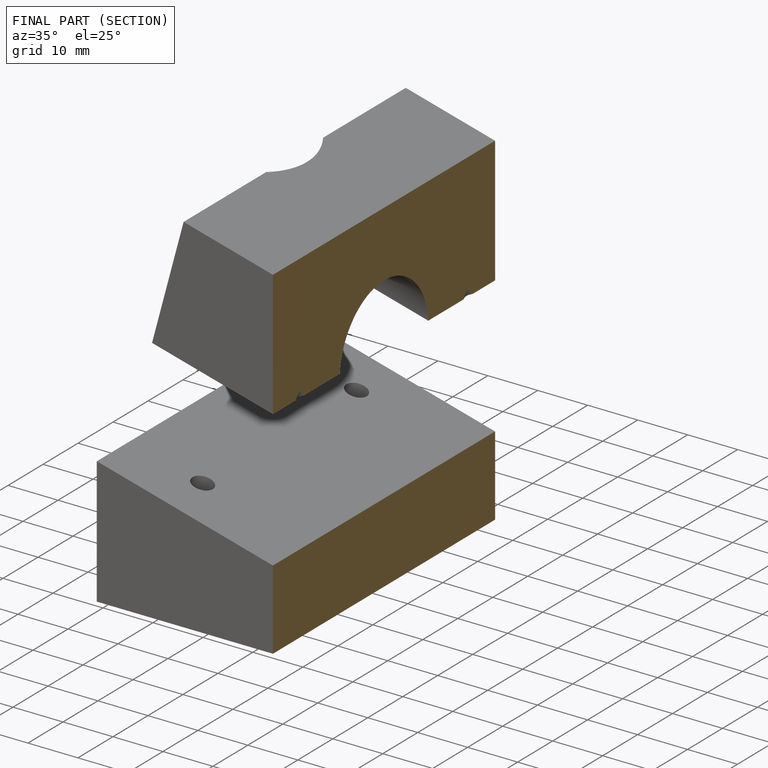
[diagram: finished part — half-section view (interior)]
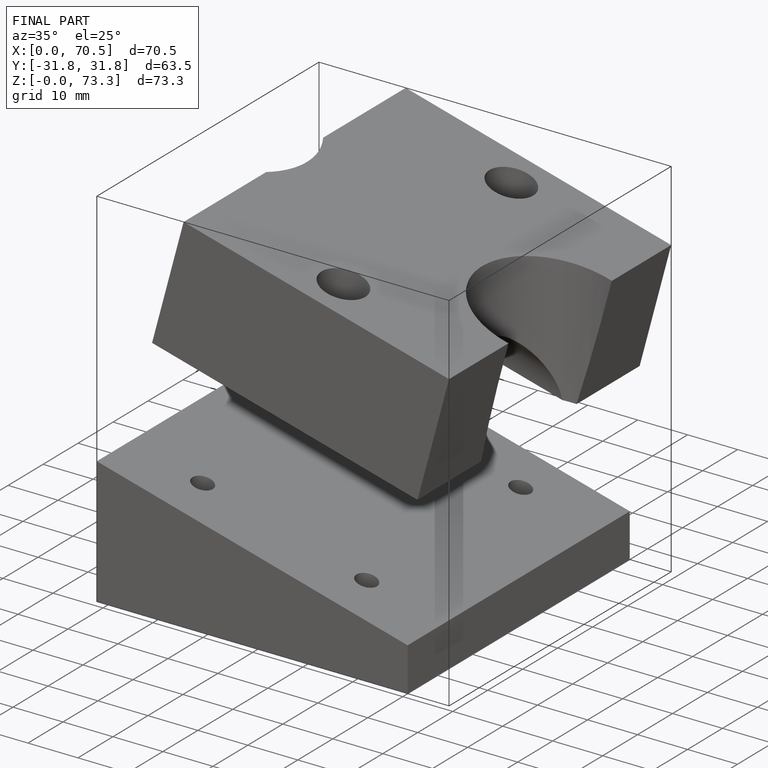
[diagram: finished part — iso view with bounding-box wireframe]
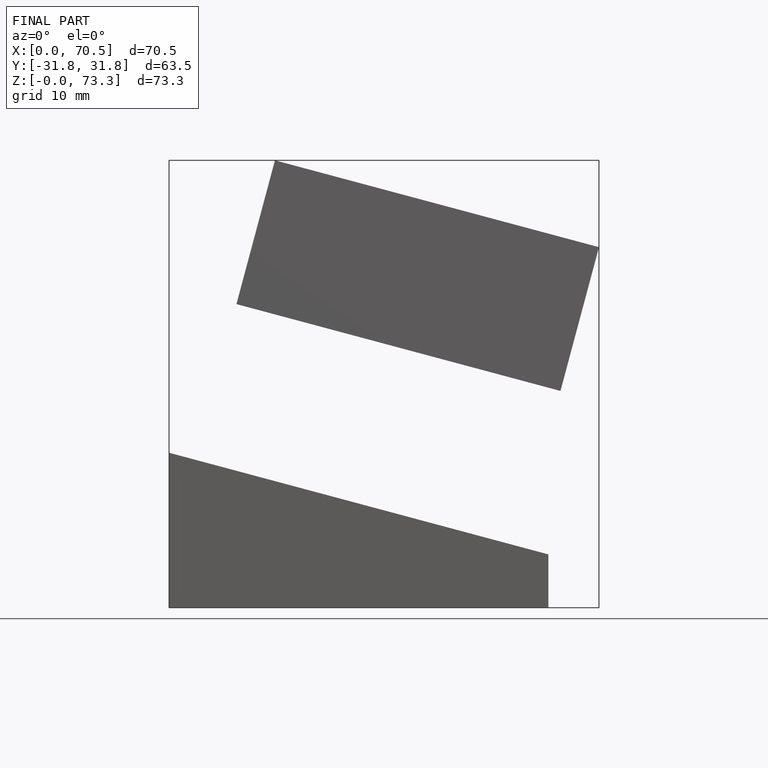
[diagram: finished part — front view with bounding-box wireframe]
